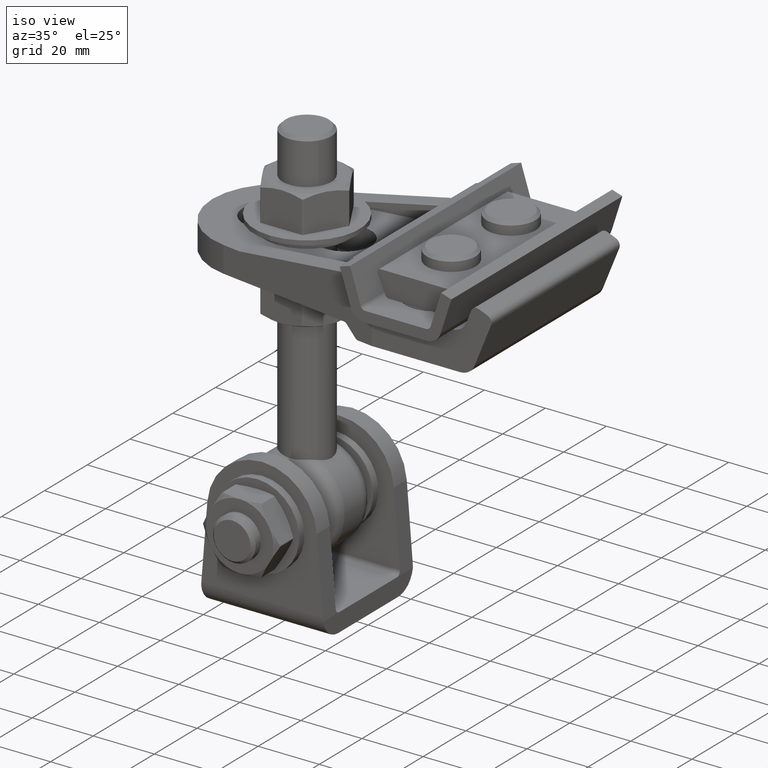
[diagram: clean part render]
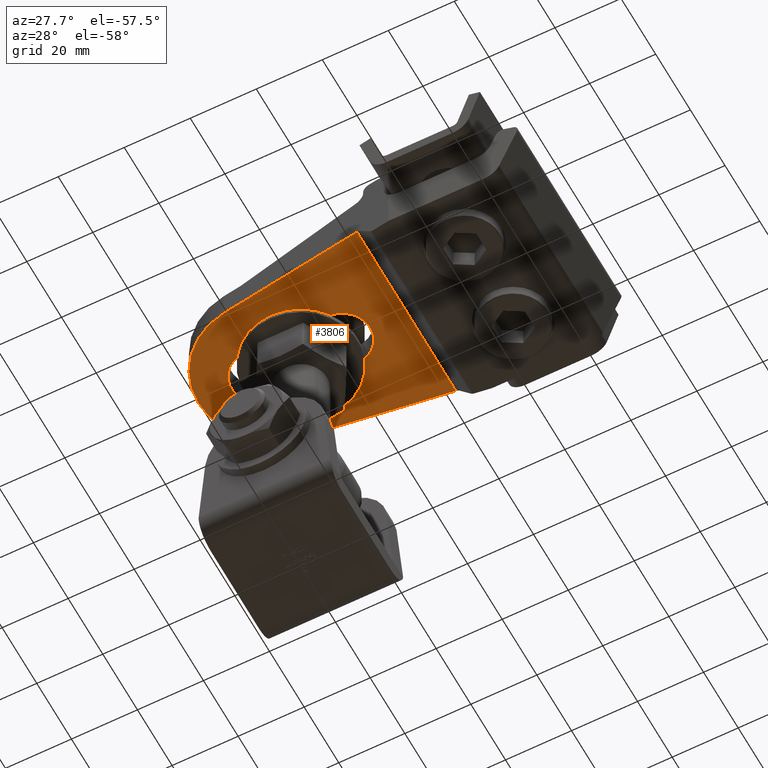
[diagram: tour spotlight — one face highlighted and labeled with its STEP entity id]
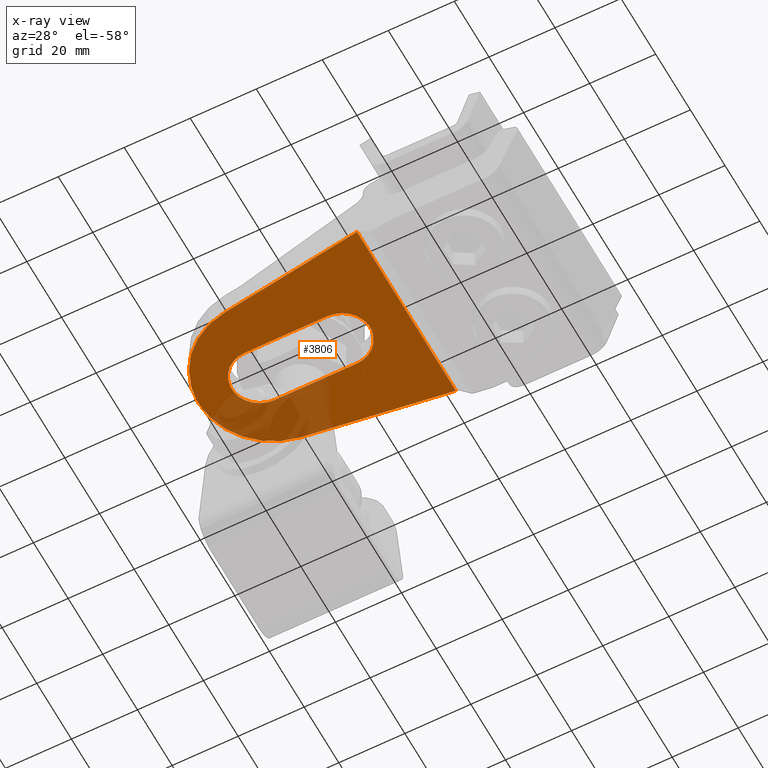
[diagram: x-ray of the same camera — body ghosted, this tour face saturated]
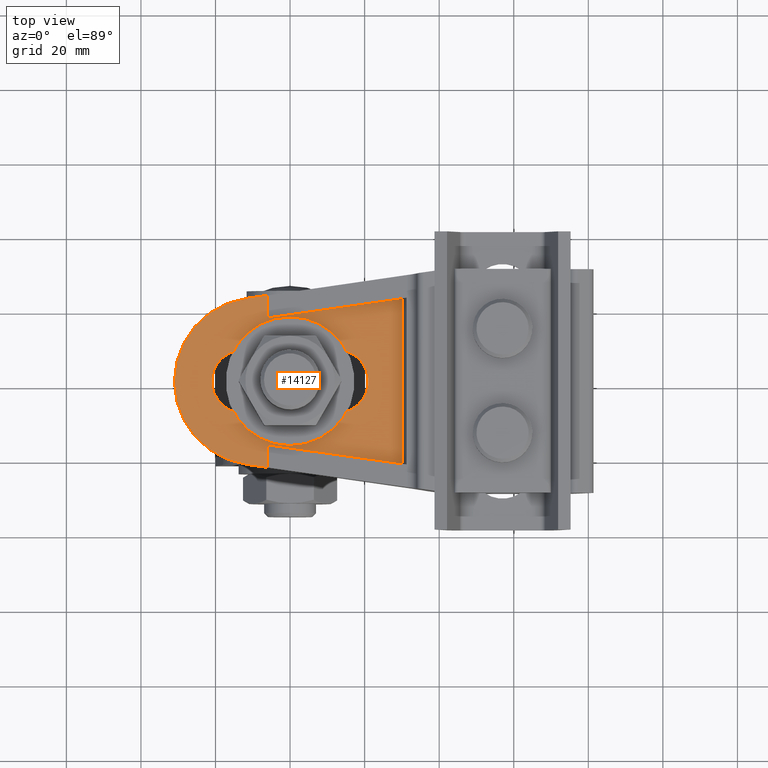
[diagram: tour spotlight — one face highlighted and labeled with its STEP entity id]
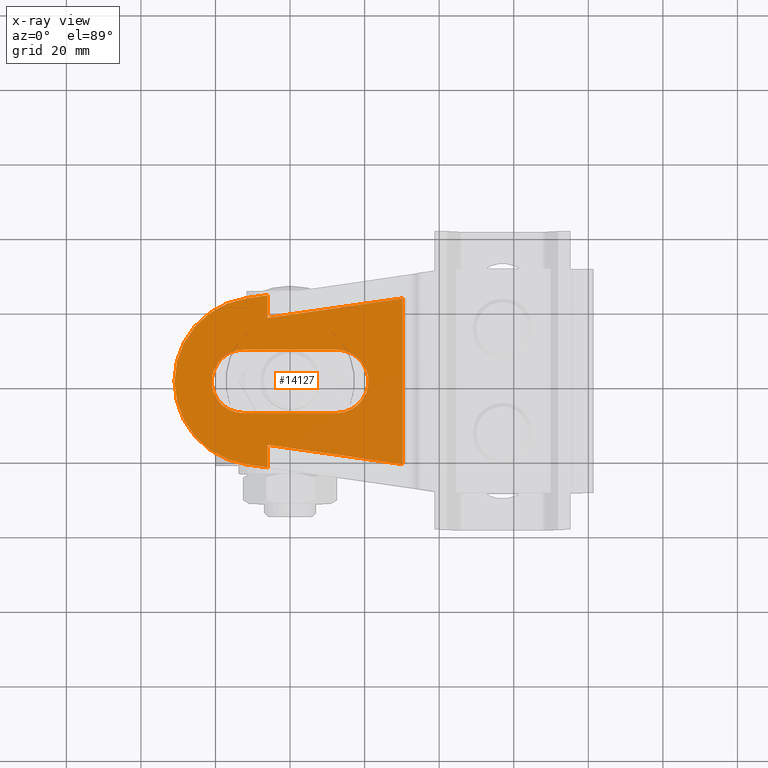
[diagram: x-ray of the same camera — body ghosted, this tour face saturated]
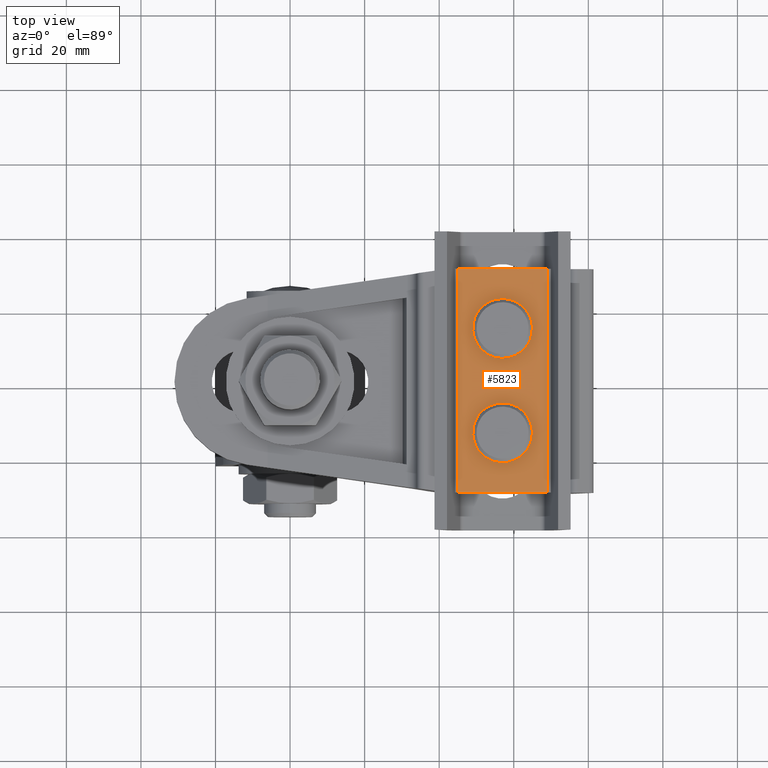
[diagram: tour spotlight — one face highlighted and labeled with its STEP entity id]
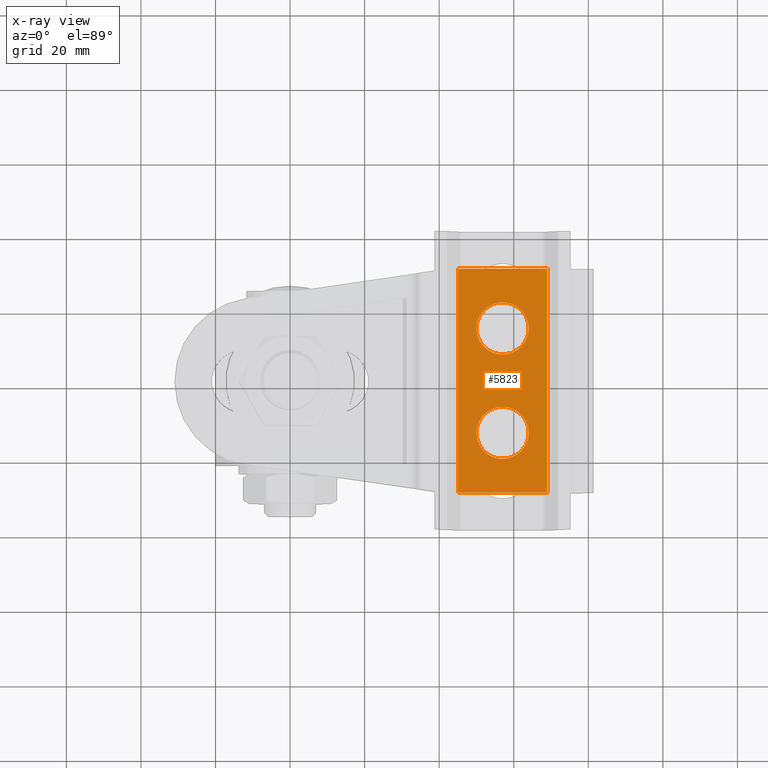
[diagram: x-ray of the same camera — body ghosted, this tour face saturated]
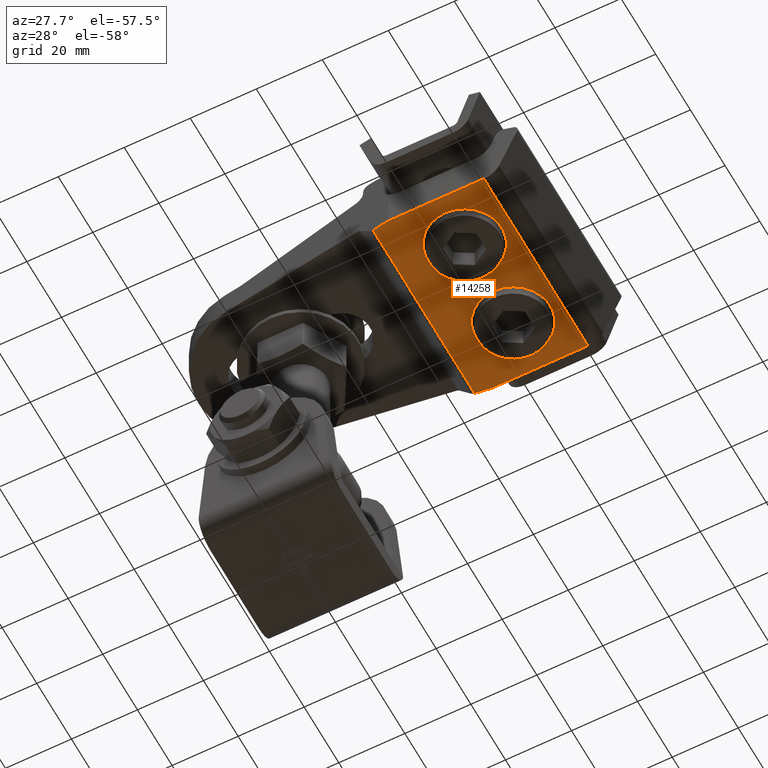
[diagram: tour spotlight — one face highlighted and labeled with its STEP entity id]
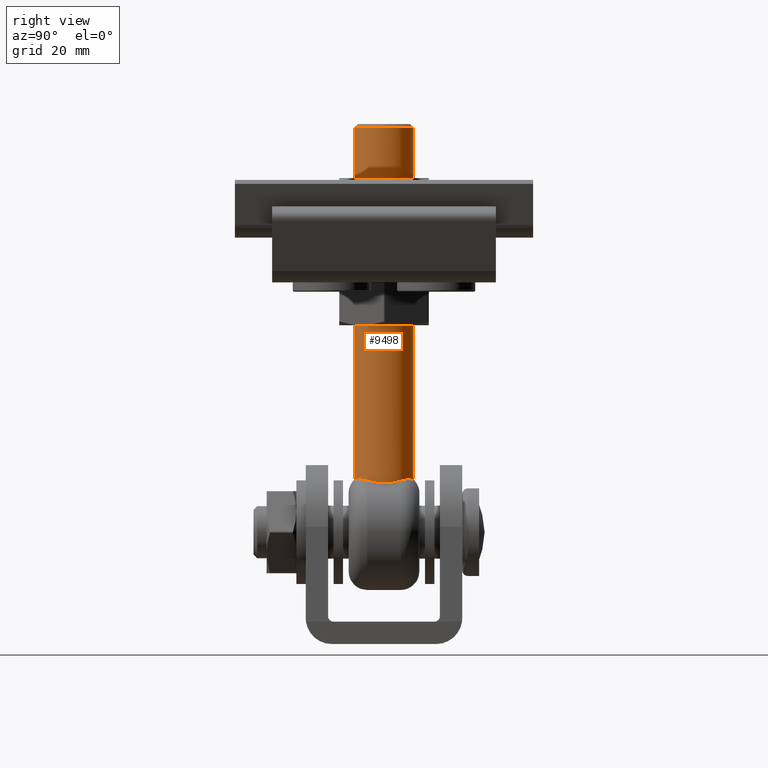
[diagram: tour spotlight — one face highlighted and labeled with its STEP entity id]
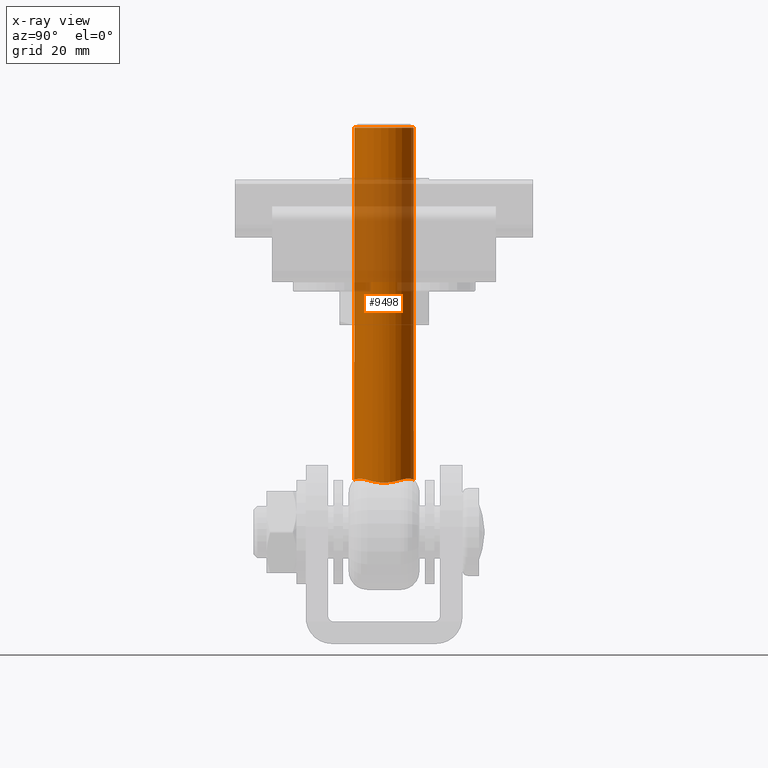
[diagram: x-ray of the same camera — body ghosted, this tour face saturated]
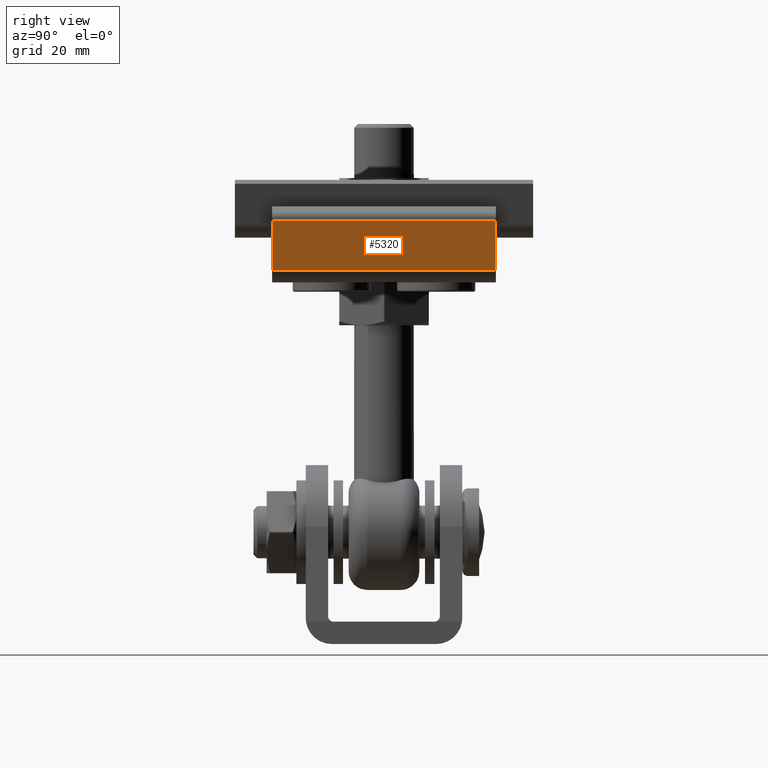
[diagram: tour spotlight — one face highlighted and labeled with its STEP entity id]
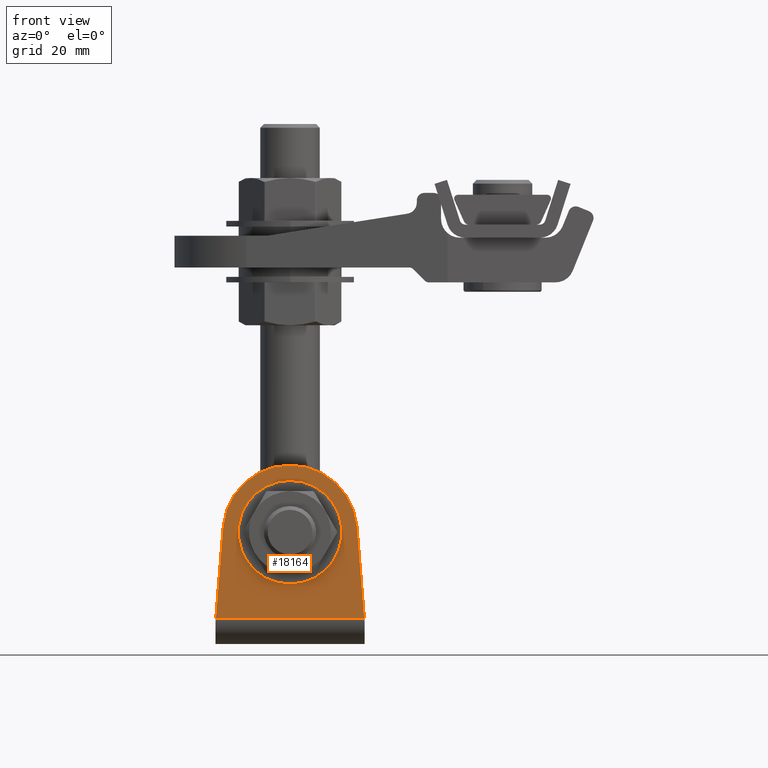
[diagram: tour spotlight — one face highlighted and labeled with its STEP entity id]
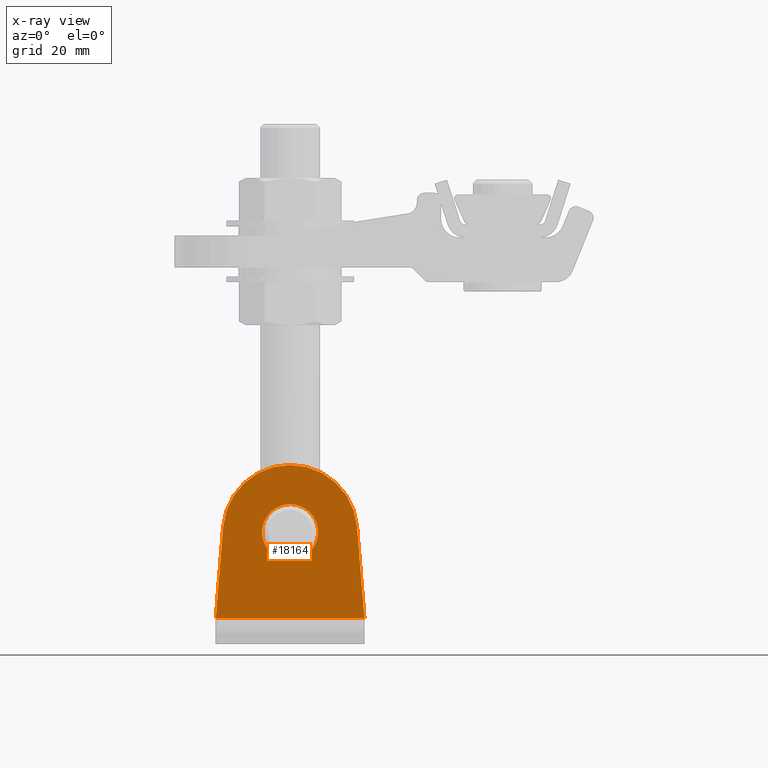
[diagram: x-ray of the same camera — body ghosted, this tour face saturated]
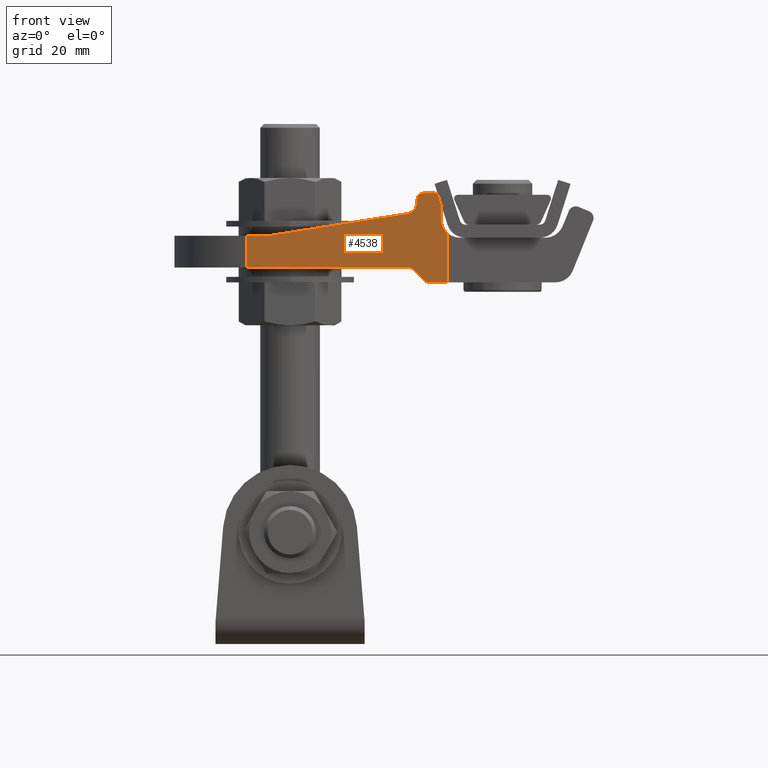
[diagram: tour spotlight — one face highlighted and labeled with its STEP entity id]
A machine part: a face-by-face anatomy tour. The part has 488 B-rep faces; the first image is the clean iso view, then the 8 largest visible faces are spotlighted one at a time (largest first), each with its STEP entity span.

Face 1 — auxiliary view, entity #3806. An x-ray twin of the same camera follows (body ghosted, this face saturated) — the face is partly hidden behind the body. In plain terms, the highlighted planar face has unit normal (0, 0, 1).
Definition (entity closure, byte-faithful):
#338 = ORIENTED_EDGE ( 'NONE', *, *, #9616, .T. ) ;
#402 = LINE ( 'NONE', #18643, #12766 ) ;
#461 = AXIS2_PLACEMENT_3D ( 'NONE', #1391, #14228, #14365 ) ;
#556 = CARTESIAN_POINT ( 'NONE',  ( 38.00000000000000000, -6.938893903907228378E-15, 6.500000000000007105 ) ) ;
#1169 = AXIS2_PLACEMENT_3D ( 'NONE', #5800, #2523, #10716 ) ;
#1391 = CARTESIAN_POINT ( 'NONE',  ( 56.50000000000000000, 30.00000000000000000, 6.500000000000002665 ) ) ;
#1575 = DIRECTION ( 'NONE',  ( 0.9898832253389983071, 0.1418844607152657256, -9.539853719284447018E-17 ) ) ;
#1597 = LINE ( 'NONE', #19187, #2364 ) ;
#2100 = LINE ( 'NONE', #11267, #16198 ) ;
#2325 = VECTOR ( 'NONE', #18670, 1000.000000000000000 ) ;
#2364 = VECTOR ( 'NONE', #6199, 1000.000000000000000 ) ;
#2448 = VERTEX_POINT ( 'NONE', #14483 ) ;
#2523 = DIRECTION ( 'NONE',  ( 9.637352644315596475E-17, -0.000000000000000000, 1.000000000000000000 ) ) ;
#3509 = CARTESIAN_POINT ( 'NONE',  ( 56.50000000000000000, -8.500000000000007105, 6.500000000000002665 ) ) ;
#3806 = ADVANCED_FACE ( 'NONE', ( #9475, #14750 ), #18781, .F. ) ;
#4777 = VERTEX_POINT ( 'NONE', #14042 ) ;
#5376 = AXIS2_PLACEMENT_3D ( 'NONE', #556, #14928, #10170 ) ;
#5800 = CARTESIAN_POINT ( 'NONE',  ( 34.00000000000000000, 0.000000000000000000, 6.500000000000007105 ) ) ;
#5838 = CARTESIAN_POINT ( 'NONE',  ( 56.50000000000000000, 8.500000000000007105, 6.500000000000002665 ) ) ;
#5876 = LINE ( 'NONE', #5838, #2325 ) ;
#6199 = DIRECTION ( 'NONE',  ( -0.9898832253389984182, 0.1418844607152655313, 9.539853719284448250E-17 ) ) ;
#6477 = VERTEX_POINT ( 'NONE', #14390 ) ;
#6686 = DIRECTION ( 'NONE',  ( -1.000000000000000000, 0.000000000000000000, 9.637352644315596475E-17 ) ) ;
#7733 = ORIENTED_EDGE ( 'NONE', *, *, #19986, .F. ) ;
#7751 = CARTESIAN_POINT ( 'NONE',  ( 37.99999999999999289, -8.500000000000014211, 6.500000000000007105 ) ) ;
#7794 = VERTEX_POINT ( 'NONE', #16688 ) ;
#7875 = CIRCLE ( 'NONE', #1169, 22.50000000000000000 ) ;
#8574 = ORIENTED_EDGE ( 'NONE', *, *, #10649, .T. ) ;
#8590 = CIRCLE ( 'NONE', #19296, 8.500000000000007105 ) ;
#8617 = VERTEX_POINT ( 'NONE', #14412 ) ;
#9475 = FACE_OUTER_BOUND ( 'NONE', #16668, .T. ) ;
#9616 = EDGE_CURVE ( 'NONE', #14835, #8617, #18653, .T. ) ;
#10170 = DIRECTION ( 'NONE',  ( -1.000000000000000000, 0.000000000000000000, 1.020425574104003260E-16 ) ) ;
#10450 = CIRCLE ( 'NONE', #5376, 8.500000000000007105 ) ;
#10649 = EDGE_CURVE ( 'NONE', #8617, #6477, #8590, .T. ) ;
#10660 = DIRECTION ( 'NONE',  ( -0.000000000000000000, -1.000000000000000000, -0.000000000000000000 ) ) ;
#10716 = DIRECTION ( 'NONE',  ( -1.000000000000000000, 0.000000000000000000, 1.156482317317871478E-16 ) ) ;
#11267 = CARTESIAN_POINT ( 'NONE',  ( 63.45291978971244617, -18.50833299339160831, 6.500000000000001776 ) ) ;
#11555 = DIRECTION ( 'NONE',  ( -1.000000000000000000, 0.000000000000000000, 1.020425574104003260E-16 ) ) ;
#11783 = VERTEX_POINT ( 'NONE', #16489 ) ;
#12766 = VECTOR ( 'NONE', #10660, 1000.000000000000000 ) ;
#13037 = ORIENTED_EDGE ( 'NONE', *, *, #14753, .T. ) ;
#13336 = EDGE_LOOP ( 'NONE', ( #17068, #338, #8574, #7733 ) ) ;
#13555 = ORIENTED_EDGE ( 'NONE', *, *, #18053, .T. ) ;
#14042 = CARTESIAN_POINT ( 'NONE',  ( -6.499999999999999112, 28.53500285278087389, 6.500000000000007994 ) ) ;
#14228 = DIRECTION ( 'NONE',  ( -9.637352644315596475E-17, 0.000000000000000000, -1.000000000000000000 ) ) ;
#14365 = DIRECTION ( 'NONE',  ( -1.000000000000000000, 0.000000000000000000, 9.637352644315596475E-17 ) ) ;
#14386 = VECTOR ( 'NONE', #6686, 1000.000000000000000 ) ;
#14390 = CARTESIAN_POINT ( 'NONE',  ( 12.99999999999999112, 8.500000000000007105, 6.500000000000004441 ) ) ;
#14412 = CARTESIAN_POINT ( 'NONE',  ( 12.99999999999999112, -8.500000000000007105, 6.500000000000007105 ) ) ;
#14483 = CARTESIAN_POINT ( 'NONE',  ( 37.99999999999999289, 8.500000000000007105, 6.500000000000007105 ) ) ;
#14750 = FACE_BOUND ( 'NONE', #13336, .T. ) ;
#14753 = EDGE_CURVE ( 'NONE', #4777, #11783, #402, .T. ) ;
#14835 = VERTEX_POINT ( 'NONE', #7751 ) ;
#14847 = DIRECTION ( 'NONE',  ( -9.637352644315596475E-17, 0.000000000000000000, -1.000000000000000000 ) ) ;
#14928 = DIRECTION ( 'NONE',  ( -9.637352644315596475E-17, 0.000000000000000000, -1.000000000000000000 ) ) ;
#15929 = VERTEX_POINT ( 'NONE', #19539 ) ;
#16198 = VECTOR ( 'NONE', #1575, 1000.000000000000114 ) ;
#16437 = ORIENTED_EDGE ( 'NONE', *, *, #19835, .T. ) ;
#16489 = CARTESIAN_POINT ( 'NONE',  ( -6.499999999999999112, -28.53500285278089876, 6.500000000000007994 ) ) ;
#16668 = EDGE_LOOP ( 'NONE', ( #13037, #20809, #16437, #13555 ) ) ;
#16688 = CARTESIAN_POINT ( 'NONE',  ( 37.19240036609347300, 22.27237257012746596, 6.500000000000010658 ) ) ;
#16712 = EDGE_CURVE ( 'NONE', #2448, #14835, #10450, .T. ) ;
#17068 = ORIENTED_EDGE ( 'NONE', *, *, #16712, .T. ) ;
#18053 = EDGE_CURVE ( 'NONE', #7794, #4777, #1597, .T. ) ;
#18643 = CARTESIAN_POINT ( 'NONE',  ( -6.499999999999999112, 30.00000000000000000, 6.500000000000007994 ) ) ;
#18653 = LINE ( 'NONE', #3509, #14386 ) ;
#18670 = DIRECTION ( 'NONE',  ( -1.000000000000000000, 0.000000000000000000, 9.637352644315596475E-17 ) ) ;
#18712 = EDGE_CURVE ( 'NONE', #11783, #15929, #2100, .T. ) ;
#18781 = PLANE ( 'NONE',  #461 ) ;
#19187 = CARTESIAN_POINT ( 'NONE',  ( 55.02597693381374455, 19.71620500493930805, 6.500000000000002665 ) ) ;
#19296 = AXIS2_PLACEMENT_3D ( 'NONE', #19627, #14847, #11555 ) ;
#19539 = CARTESIAN_POINT ( 'NONE',  ( 37.19240036609348010, -22.27237257012746952, 6.500000000000010658 ) ) ;
#19627 = CARTESIAN_POINT ( 'NONE',  ( 12.99999999999999112, -6.938893903907228378E-15, 6.500000000000007105 ) ) ;
#19835 = EDGE_CURVE ( 'NONE', #15929, #7794, #7875, .T. ) ;
#19986 = EDGE_CURVE ( 'NONE', #2448, #6477, #5876, .T. ) ;
#20809 = ORIENTED_EDGE ( 'NONE', *, *, #18712, .T. ) ;

Face 2 — top view, entity #14127. An x-ray twin of the same camera follows (body ghosted, this face saturated) — the face is partly hidden behind the body. In plain terms, the highlighted planar face has unit normal (0, -0, -1).
Definition (entity closure, byte-faithful):
#419 = CARTESIAN_POINT ( 'NONE',  ( 38.00000000000000000, -6.938893903907228378E-15, -1.999999999999996669 ) ) ;
#645 = VECTOR ( 'NONE', #13883, 1000.000000000000000 ) ;
#815 = EDGE_CURVE ( 'NONE', #19872, #3715, #10074, .T. ) ;
#831 = CIRCLE ( 'NONE', #17224, 8.500000000000007105 ) ;
#1220 = EDGE_CURVE ( 'NONE', #19872, #1550, #17567, .T. ) ;
#1403 = CARTESIAN_POINT ( 'NONE',  ( 12.99999999999999112, 8.500000000000007105, -1.999999999999996669 ) ) ;
#1408 = AXIS2_PLACEMENT_3D ( 'NONE', #18634, #5867, #2594 ) ;
#1409 = PLANE ( 'NONE',  #2351 ) ;
#1550 = VERTEX_POINT ( 'NONE', #3863 ) ;
#1622 = DIRECTION ( 'NONE',  ( 0.9898832253389984182, -0.1418844607152655035, 0.000000000000000000 ) ) ;
#1891 = DIRECTION ( 'NONE',  ( 1.000000000000000000, 0.000000000000000000, 0.000000000000000000 ) ) ;
#2351 = AXIS2_PLACEMENT_3D ( 'NONE', #9333, #17400, #20664 ) ;
#2376 = VECTOR ( 'NONE', #14540, 1000.000000000000000 ) ;
#2536 = DIRECTION ( 'NONE',  ( -0.000000000000000000, -1.000000000000000000, -0.000000000000000000 ) ) ;
#2578 = CARTESIAN_POINT ( 'NONE',  ( 34.00000000000000000, 0.000000000000000000, -1.999999999999996669 ) ) ;
#2594 = DIRECTION ( 'NONE',  ( -1.000000000000000000, 0.000000000000000000, 0.000000000000000000 ) ) ;
#2602 = CARTESIAN_POINT ( 'NONE',  ( 31.50000000000000000, 30.00000000000000000, -1.999999999999996669 ) ) ;
#2892 = CARTESIAN_POINT ( 'NONE',  ( 37.19240036609348010, -22.27237257012746952, -1.999999999999996669 ) ) ;
#2967 = CARTESIAN_POINT ( 'NONE',  ( 31.50000000000000711, -23.08829018085571150, -1.999999999999996669 ) ) ;
#3225 = VECTOR ( 'NONE', #3740, 1000.000000000000000 ) ;
#3689 = CARTESIAN_POINT ( 'NONE',  ( 31.50000000000000000, 23.08829018085569729, -1.999999999999996669 ) ) ;
#3715 = VERTEX_POINT ( 'NONE', #4052 ) ;
#3740 = DIRECTION ( 'NONE',  ( 0.9898832253389984182, -0.1418844607152655313, 0.000000000000000000 ) ) ;
#3751 = DIRECTION ( 'NONE',  ( 0.000000000000000000, 0.000000000000000000, 1.000000000000000000 ) ) ;
#3844 = VERTEX_POINT ( 'NONE', #2892 ) ;
#3863 = CARTESIAN_POINT ( 'NONE',  ( 31.50000000000000000, -17.02696916195955623, -1.999999999999996669 ) ) ;
#4052 = CARTESIAN_POINT ( 'NONE',  ( -4.722881292262453456, 22.21895933428078251, -1.999999999999994893 ) ) ;
#4292 = EDGE_LOOP ( 'NONE', ( #6317, #10360, #8944, #10957, #17011, #19492, #16900, #11607 ) ) ;
#4353 = EDGE_CURVE ( 'NONE', #3844, #8075, #15015, .T. ) ;
#4380 = AXIS2_PLACEMENT_3D ( 'NONE', #2578, #12037, #16791 ) ;
#4646 = CARTESIAN_POINT ( 'NONE',  ( 3.025554408345583202, -21.10834083643608849, -1.999999999999996669 ) ) ;
#4692 = EDGE_LOOP ( 'NONE', ( #13658, #16168, #19337, #16705 ) ) ;
#4864 = CARTESIAN_POINT ( 'NONE',  ( 30.52925693862528789, 23.22743119489709329, -1.999999999999996669 ) ) ;
#4915 = LINE ( 'NONE', #6536, #17471 ) ;
#5743 = CARTESIAN_POINT ( 'NONE',  ( 31.50000000000000000, -8.500000000000007105, -1.999999999999996669 ) ) ;
#5791 = VECTOR ( 'NONE', #11357, 1000.000000000000000 ) ;
#5867 = DIRECTION ( 'NONE',  ( -0.000000000000000000, -0.000000000000000000, 1.000000000000000000 ) ) ;
#5897 = EDGE_CURVE ( 'NONE', #10041, #16462, #15727, .T. ) ;
#5983 = EDGE_CURVE ( 'NONE', #1550, #8075, #10713, .T. ) ;
#6317 = ORIENTED_EDGE ( 'NONE', *, *, #1220, .F. ) ;
#6494 = FACE_OUTER_BOUND ( 'NONE', #4292, .T. ) ;
#6536 = CARTESIAN_POINT ( 'NONE',  ( 3.025554408345579649, 21.10834083643606718, -1.999999999999996669 ) ) ;
#7110 = CARTESIAN_POINT ( 'NONE',  ( 31.50000000000000000, 30.00000000000000000, -1.999999999999996669 ) ) ;
#7158 = EDGE_CURVE ( 'NONE', #18758, #16462, #831, .T. ) ;
#7372 = CARTESIAN_POINT ( 'NONE',  ( -4.722881292262453456, -22.21895933428080383, -1.999999999999996669 ) ) ;
#7688 = CARTESIAN_POINT ( 'NONE',  ( 37.19240036609347300, 22.27237257012746596, -1.999999999999996669 ) ) ;
#8075 = VERTEX_POINT ( 'NONE', #2967 ) ;
#8126 = VERTEX_POINT ( 'NONE', #7688 ) ;
#8944 = ORIENTED_EDGE ( 'NONE', *, *, #17780, .T. ) ;
#9220 = DIRECTION ( 'NONE',  ( -0.9898832253389983071, -0.1418844607152657256, 0.000000000000000000 ) ) ;
#9333 = CARTESIAN_POINT ( 'NONE',  ( 31.50000000000000000, 30.00000000000000000, -1.999999999999996669 ) ) ;
#9948 = CARTESIAN_POINT ( 'NONE',  ( 12.99999999999999112, -8.500000000000014211, -1.999999999999996669 ) ) ;
#10041 = VERTEX_POINT ( 'NONE', #1403 ) ;
#10074 = LINE ( 'NONE', #11425, #5791 ) ;
#10269 = VERTEX_POINT ( 'NONE', #3689 ) ;
#10360 = ORIENTED_EDGE ( 'NONE', *, *, #815, .T. ) ;
#10604 = VERTEX_POINT ( 'NONE', #9948 ) ;
#10713 = LINE ( 'NONE', #7110, #19765 ) ;
#10957 = ORIENTED_EDGE ( 'NONE', *, *, #14617, .F. ) ;
#11254 = LINE ( 'NONE', #5743, #645 ) ;
#11332 = CARTESIAN_POINT ( 'NONE',  ( 31.50000000000000000, 8.500000000000007105, -1.999999999999996669 ) ) ;
#11357 = DIRECTION ( 'NONE',  ( -0.000000000000000000, 1.000000000000000000, 0.000000000000000000 ) ) ;
#11425 = CARTESIAN_POINT ( 'NONE',  ( -4.722881292262455233, 30.00000000000000000, -1.999999999999996669 ) ) ;
#11607 = ORIENTED_EDGE ( 'NONE', *, *, #5983, .F. ) ;
#12037 = DIRECTION ( 'NONE',  ( -0.000000000000000000, -0.000000000000000000, -1.000000000000000000 ) ) ;
#12730 = CIRCLE ( 'NONE', #1408, 8.500000000000007105 ) ;
#12763 = VECTOR ( 'NONE', #9220, 1000.000000000000114 ) ;
#12851 = EDGE_CURVE ( 'NONE', #10269, #8126, #16041, .T. ) ;
#13014 = VECTOR ( 'NONE', #2536, 1000.000000000000000 ) ;
#13039 = EDGE_CURVE ( 'NONE', #8126, #3844, #14534, .T. ) ;
#13568 = DIRECTION ( 'NONE',  ( -0.000000000000000000, -1.000000000000000000, -0.000000000000000000 ) ) ;
#13658 = ORIENTED_EDGE ( 'NONE', *, *, #5897, .F. ) ;
#13883 = DIRECTION ( 'NONE',  ( 1.000000000000000000, 0.000000000000000000, -0.000000000000000000 ) ) ;
#14127 = ADVANCED_FACE ( 'NONE', ( #6494, #14513 ), #1409, .F. ) ;
#14513 = FACE_BOUND ( 'NONE', #4692, .T. ) ;
#14534 = CIRCLE ( 'NONE', #4380, 22.50000000000000000 ) ;
#14540 = DIRECTION ( 'NONE',  ( 1.000000000000000000, 0.000000000000000000, -0.000000000000000000 ) ) ;
#14594 = EDGE_CURVE ( 'NONE', #10604, #18758, #11254, .T. ) ;
#14617 = EDGE_CURVE ( 'NONE', #10269, #20510, #17253, .T. ) ;
#15015 = LINE ( 'NONE', #18822, #12763 ) ;
#15727 = LINE ( 'NONE', #11332, #2376 ) ;
#15887 = DIRECTION ( 'NONE',  ( 0.9898832253389984182, 0.1418844607152655313, 0.000000000000000000 ) ) ;
#15915 = CARTESIAN_POINT ( 'NONE',  ( 37.99999999999999289, 8.500000000000007105, -1.999999999999996669 ) ) ;
#16041 = LINE ( 'NONE', #4864, #3225 ) ;
#16168 = ORIENTED_EDGE ( 'NONE', *, *, #16979, .T. ) ;
#16462 = VERTEX_POINT ( 'NONE', #15915 ) ;
#16545 = VECTOR ( 'NONE', #15887, 1000.000000000000000 ) ;
#16705 = ORIENTED_EDGE ( 'NONE', *, *, #7158, .T. ) ;
#16791 = DIRECTION ( 'NONE',  ( 1.000000000000000000, 0.000000000000000000, 0.000000000000000000 ) ) ;
#16900 = ORIENTED_EDGE ( 'NONE', *, *, #4353, .T. ) ;
#16979 = EDGE_CURVE ( 'NONE', #10041, #10604, #12730, .T. ) ;
#17011 = ORIENTED_EDGE ( 'NONE', *, *, #12851, .T. ) ;
#17224 = AXIS2_PLACEMENT_3D ( 'NONE', #419, #3751, #1891 ) ;
#17253 = LINE ( 'NONE', #2602, #13014 ) ;
#17400 = DIRECTION ( 'NONE',  ( 0.000000000000000000, 0.000000000000000000, 1.000000000000000000 ) ) ;
#17471 = VECTOR ( 'NONE', #1622, 1000.000000000000000 ) ;
#17567 = LINE ( 'NONE', #4646, #16545 ) ;
#17780 = EDGE_CURVE ( 'NONE', #3715, #20510, #4915, .T. ) ;
#18634 = CARTESIAN_POINT ( 'NONE',  ( 12.99999999999999112, -6.938893903907228378E-15, -1.999999999999996669 ) ) ;
#18758 = VERTEX_POINT ( 'NONE', #19692 ) ;
#18822 = CARTESIAN_POINT ( 'NONE',  ( 38.95619979452398240, -22.01955918334940066, -1.999999999999996669 ) ) ;
#19337 = ORIENTED_EDGE ( 'NONE', *, *, #14594, .T. ) ;
#19492 = ORIENTED_EDGE ( 'NONE', *, *, #13039, .T. ) ;
#19692 = CARTESIAN_POINT ( 'NONE',  ( 37.99999999999999289, -8.500000000000007105, -1.999999999999996669 ) ) ;
#19765 = VECTOR ( 'NONE', #13568, 1000.000000000000000 ) ;
#19872 = VERTEX_POINT ( 'NONE', #7372 ) ;
#20356 = CARTESIAN_POINT ( 'NONE',  ( 31.50000000000000000, 17.02696916195953847, -1.999999999999996669 ) ) ;
#20510 = VERTEX_POINT ( 'NONE', #20356 ) ;
#20664 = DIRECTION ( 'NONE',  ( 1.000000000000000000, 0.000000000000000000, -0.000000000000000000 ) ) ;

Face 3 — top view, entity #5823. An x-ray twin of the same camera follows (body ghosted, this face saturated) — the face is partly hidden behind the body. In plain terms, the highlighted planar face has unit normal (-0, -0, -1).
Definition (entity closure, byte-faithful):
#148 = DIRECTION ( 'NONE',  ( -0.000000000000000000, -1.000000000000000000, -0.000000000000000000 ) ) ;
#341 = DIRECTION ( 'NONE',  ( 1.000000000000000000, 0.000000000000000000, 0.000000000000000000 ) ) ;
#642 = LINE ( 'NONE', #3205, #10493 ) ;
#1285 = VECTOR ( 'NONE', #10369, 1000.000000000000000 ) ;
#1322 = VERTEX_POINT ( 'NONE', #18066 ) ;
#1472 = EDGE_CURVE ( 'NONE', #5618, #5618, #16312, .T. ) ;
#1941 = CARTESIAN_POINT ( 'NONE',  ( -11.99999999999999822, 30.00000000000000000, -4.000000000000002665 ) ) ;
#2178 = CARTESIAN_POINT ( 'NONE',  ( -11.99999999999999822, 30.00000000000000000, -4.000000000000001776 ) ) ;
#2374 = CARTESIAN_POINT ( 'NONE',  ( -11.99999999999999822, -30.00000000000000000, -4.000000000000002665 ) ) ;
#3007 = ORIENTED_EDGE ( 'NONE', *, *, #15081, .T. ) ;
#3205 = CARTESIAN_POINT ( 'NONE',  ( -11.99999999999999822, 30.00000000000000000, -4.000000000000001776 ) ) ;
#3438 = LINE ( 'NONE', #20734, #11735 ) ;
#3541 = DIRECTION ( 'NONE',  ( -0.000000000000000000, -0.000000000000000000, 1.000000000000000000 ) ) ;
#3701 = CIRCLE ( 'NONE', #4141, 6.999999999999986677 ) ;
#4141 = AXIS2_PLACEMENT_3D ( 'NONE', #14776, #3541, #341 ) ;
#4776 = EDGE_CURVE ( 'NONE', #17405, #14389, #3438, .T. ) ;
#4853 = EDGE_CURVE ( 'NONE', #14389, #11020, #642, .T. ) ;
#5420 = DIRECTION ( 'NONE',  ( 1.000000000000000000, 0.000000000000000000, 0.000000000000000000 ) ) ;
#5618 = VERTEX_POINT ( 'NONE', #10774 ) ;
#5823 = ADVANCED_FACE ( 'NONE', ( #17748, #11978, #10970 ), #13156, .F. ) ;
#5987 = CARTESIAN_POINT ( 'NONE',  ( 6.999999999999989342, -14.00000000000000000, -4.000000000000005329 ) ) ;
#7164 = ORIENTED_EDGE ( 'NONE', *, *, #4853, .F. ) ;
#7313 = EDGE_CURVE ( 'NONE', #17405, #1322, #11936, .T. ) ;
#8099 = VERTEX_POINT ( 'NONE', #5987 ) ;
#8370 = DIRECTION ( 'NONE',  ( 1.000000000000000000, 0.000000000000000000, -0.000000000000000000 ) ) ;
#8577 = ORIENTED_EDGE ( 'NONE', *, *, #20712, .T. ) ;
#9130 = EDGE_LOOP ( 'NONE', ( #3007 ) ) ;
#10369 = DIRECTION ( 'NONE',  ( -1.000000000000000000, -0.000000000000000000, -0.000000000000000000 ) ) ;
#10493 = VECTOR ( 'NONE', #148, 1000.000000000000000 ) ;
#10774 = CARTESIAN_POINT ( 'NONE',  ( 6.999999999999989342, 14.00000000000000000, -4.000000000000005329 ) ) ;
#10970 = FACE_OUTER_BOUND ( 'NONE', #13765, .T. ) ;
#11020 = VERTEX_POINT ( 'NONE', #20766 ) ;
#11137 = EDGE_LOOP ( 'NONE', ( #17286 ) ) ;
#11735 = VECTOR ( 'NONE', #15717, 1000.000000000000000 ) ;
#11819 = DIRECTION ( 'NONE',  ( -0.000000000000000000, -0.000000000000000000, 1.000000000000000000 ) ) ;
#11936 = LINE ( 'NONE', #14591, #20494 ) ;
#11978 = FACE_BOUND ( 'NONE', #9130, .T. ) ;
#13084 = DIRECTION ( 'NONE',  ( 0.000000000000000000, 0.000000000000000000, 1.000000000000000000 ) ) ;
#13123 = AXIS2_PLACEMENT_3D ( 'NONE', #15043, #11819, #5420 ) ;
#13156 = PLANE ( 'NONE',  #16914 ) ;
#13345 = ORIENTED_EDGE ( 'NONE', *, *, #4776, .F. ) ;
#13765 = EDGE_LOOP ( 'NONE', ( #8577, #7164, #13345, #15497 ) ) ;
#14150 = LINE ( 'NONE', #2374, #1285 ) ;
#14389 = VERTEX_POINT ( 'NONE', #2178 ) ;
#14591 = CARTESIAN_POINT ( 'NONE',  ( 11.99999999999999822, 30.00000000000000000, -4.000000000000002665 ) ) ;
#14776 = CARTESIAN_POINT ( 'NONE',  ( 3.868295729918083248E-15, -14.00000000000000000, -4.000000000000005329 ) ) ;
#15043 = CARTESIAN_POINT ( 'NONE',  ( 3.868295729918083248E-15, 14.00000000000000000, -4.000000000000005329 ) ) ;
#15081 = EDGE_CURVE ( 'NONE', #8099, #8099, #3701, .T. ) ;
#15497 = ORIENTED_EDGE ( 'NONE', *, *, #7313, .T. ) ;
#15717 = DIRECTION ( 'NONE',  ( -1.000000000000000000, -0.000000000000000000, -0.000000000000000000 ) ) ;
#16060 = DIRECTION ( 'NONE',  ( -0.000000000000000000, -1.000000000000000000, -0.000000000000000000 ) ) ;
#16312 = CIRCLE ( 'NONE', #13123, 6.999999999999986677 ) ;
#16914 = AXIS2_PLACEMENT_3D ( 'NONE', #1941, #13084, #8370 ) ;
#17286 = ORIENTED_EDGE ( 'NONE', *, *, #1472, .T. ) ;
#17405 = VERTEX_POINT ( 'NONE', #19901 ) ;
#17748 = FACE_BOUND ( 'NONE', #11137, .T. ) ;
#18066 = CARTESIAN_POINT ( 'NONE',  ( 11.99999999999999822, -30.00000000000000000, -4.000000000000002665 ) ) ;
#19901 = CARTESIAN_POINT ( 'NONE',  ( 11.99999999999999822, 30.00000000000000000, -4.000000000000002665 ) ) ;
#20494 = VECTOR ( 'NONE', #16060, 1000.000000000000000 ) ;
#20712 = EDGE_CURVE ( 'NONE', #1322, #11020, #14150, .T. ) ;
#20734 = CARTESIAN_POINT ( 'NONE',  ( -11.99999999999999822, 30.00000000000000000, -4.000000000000002665 ) ) ;
#20766 = CARTESIAN_POINT ( 'NONE',  ( -11.99999999999999822, -30.00000000000000000, -4.000000000000001776 ) ) ;

Face 4 — auxiliary view, entity #14258. In plain terms, the highlighted planar face has unit normal (0, 0, 1).
Definition (entity closure, byte-faithful):
#171 = CIRCLE ( 'NONE', #13949, 11.19999999999999929 ) ;
#221 = DIRECTION ( 'NONE',  ( -1.000000000000000000, 0.000000000000000000, 5.108684021380536914E-17 ) ) ;
#652 = VERTEX_POINT ( 'NONE', #10738 ) ;
#835 = VERTEX_POINT ( 'NONE', #1463 ) ;
#1238 = DIRECTION ( 'NONE',  ( -0.000000000000000000, 1.445602896647338917E-16, -1.000000000000000000 ) ) ;
#1443 = DIRECTION ( 'NONE',  ( 0.9898832253389984182, -0.1418844607152655313, 0.000000000000000000 ) ) ;
#1463 = CARTESIAN_POINT ( 'NONE',  ( -45.69900731141533612, -30.00000000000000000, 10.50000000000000178 ) ) ;
#1748 = EDGE_CURVE ( 'NONE', #20707, #20707, #171, .T. ) ;
#2337 = VECTOR ( 'NONE', #4212, 1000.000000000000000 ) ;
#2574 = VERTEX_POINT ( 'NONE', #13219 ) ;
#2607 = CARTESIAN_POINT ( 'NONE',  ( -11.74264068711926257, 30.00000000000000000, 10.50000000000000000 ) ) ;
#2938 = FACE_BOUND ( 'NONE', #16679, .T. ) ;
#3019 = VECTOR ( 'NONE', #17488, 1000.000000000000000 ) ;
#3313 = AXIS2_PLACEMENT_3D ( 'NONE', #5926, #1238, #14136 ) ;
#3792 = EDGE_CURVE ( 'NONE', #2574, #16300, #16993, .T. ) ;
#4212 = DIRECTION ( 'NONE',  ( -0.000000000000000000, -1.000000000000000000, -0.000000000000000000 ) ) ;
#4260 = AXIS2_PLACEMENT_3D ( 'NONE', #11299, #17965, #221 ) ;
#4366 = CARTESIAN_POINT ( 'NONE',  ( -31.49999999999998579, 25.19999999999998508, 10.50000000000000888 ) ) ;
#4496 = CARTESIAN_POINT ( 'NONE',  ( -45.69900731141533612, 30.00000000000000000, 10.50000000000000178 ) ) ;
#4582 = DIRECTION ( 'NONE',  ( -0.9898832253389983071, -0.1418844607152657256, 0.000000000000000000 ) ) ;
#5594 = EDGE_CURVE ( 'NONE', #10646, #10646, #12484, .T. ) ;
#5731 = FACE_OUTER_BOUND ( 'NONE', #12404, .T. ) ;
#5926 = CARTESIAN_POINT ( 'NONE',  ( -31.49999999999998579, 13.99999999999998579, 10.50000000000000711 ) ) ;
#6237 = ORIENTED_EDGE ( 'NONE', *, *, #7296, .F. ) ;
#6656 = LINE ( 'NONE', #18677, #2337 ) ;
#6741 = FACE_BOUND ( 'NONE', #11642, .T. ) ;
#6879 = CARTESIAN_POINT ( 'NONE',  ( -31.49999999999998579, -13.99999999999998579, 10.50000000000000711 ) ) ;
#7296 = EDGE_CURVE ( 'NONE', #9255, #13515, #6656, .T. ) ;
#7373 = VECTOR ( 'NONE', #4582, 1000.000000000000114 ) ;
#7422 = ORIENTED_EDGE ( 'NONE', *, *, #8539, .F. ) ;
#8289 = ORIENTED_EDGE ( 'NONE', *, *, #8656, .F. ) ;
#8484 = DIRECTION ( 'NONE',  ( -0.000000000000000000, 1.445602896647338917E-16, 1.000000000000000000 ) ) ;
#8539 = EDGE_CURVE ( 'NONE', #16300, #9255, #14402, .T. ) ;
#8593 = ORIENTED_EDGE ( 'NONE', *, *, #11585, .T. ) ;
#8656 = EDGE_CURVE ( 'NONE', #13515, #652, #11659, .T. ) ;
#9255 = VERTEX_POINT ( 'NONE', #20228 ) ;
#9577 = EDGE_CURVE ( 'NONE', #2574, #835, #12141, .T. ) ;
#10591 = ORIENTED_EDGE ( 'NONE', *, *, #3792, .F. ) ;
#10646 = VERTEX_POINT ( 'NONE', #4366 ) ;
#10738 = CARTESIAN_POINT ( 'NONE',  ( -16.72082399926730645, -30.00000000000000355, 10.50000000000000178 ) ) ;
#11088 = ORIENTED_EDGE ( 'NONE', *, *, #5594, .T. ) ;
#11299 = CARTESIAN_POINT ( 'NONE',  ( -11.74264068711926257, 30.00000000000000000, 10.50000000000000000 ) ) ;
#11585 = EDGE_CURVE ( 'NONE', #835, #652, #15856, .T. ) ;
#11642 = EDGE_LOOP ( 'NONE', ( #11749 ) ) ;
#11659 = LINE ( 'NONE', #14216, #7373 ) ;
#11749 = ORIENTED_EDGE ( 'NONE', *, *, #1748, .F. ) ;
#12141 = LINE ( 'NONE', #4496, #15893 ) ;
#12404 = EDGE_LOOP ( 'NONE', ( #8593, #8289, #6237, #7422, #10591, #14145 ) ) ;
#12484 = CIRCLE ( 'NONE', #3313, 11.19999999999999929 ) ;
#13219 = CARTESIAN_POINT ( 'NONE',  ( -45.69900731141533612, 30.00000000000000000, 10.50000000000000178 ) ) ;
#13515 = VERTEX_POINT ( 'NONE', #14893 ) ;
#13949 = AXIS2_PLACEMENT_3D ( 'NONE', #6879, #8484, #19731 ) ;
#14023 = DIRECTION ( 'NONE',  ( 1.000000000000000000, -0.000000000000000000, -5.108684021380536914E-17 ) ) ;
#14136 = DIRECTION ( 'NONE',  ( 0.000000000000000000, 1.000000000000000000, 1.548860246407863583E-16 ) ) ;
#14145 = ORIENTED_EDGE ( 'NONE', *, *, #9577, .T. ) ;
#14216 = CARTESIAN_POINT ( 'NONE',  ( 3.876861172637180442, -27.04764018847006213, 10.50000000000000178 ) ) ;
#14258 = ADVANCED_FACE ( 'NONE', ( #6741, #2938, #5731 ), #16343, .F. ) ;
#14402 = LINE ( 'NONE', #17508, #14643 ) ;
#14643 = VECTOR ( 'NONE', #1443, 1000.000000000000000 ) ;
#14893 = CARTESIAN_POINT ( 'NONE',  ( -11.74264068711926257, -29.28645436501465227, 10.50000000000000178 ) ) ;
#15856 = LINE ( 'NONE', #15871, #3019 ) ;
#15871 = CARTESIAN_POINT ( 'NONE',  ( -11.74264068711926257, -30.00000000000000000, 10.50000000000000000 ) ) ;
#15893 = VECTOR ( 'NONE', #15945, 1000.000000000000000 ) ;
#15945 = DIRECTION ( 'NONE',  ( -0.000000000000000000, -1.000000000000000000, -0.000000000000000000 ) ) ;
#16300 = VERTEX_POINT ( 'NONE', #19292 ) ;
#16343 = PLANE ( 'NONE',  #4260 ) ;
#16679 = EDGE_LOOP ( 'NONE', ( #11088 ) ) ;
#16993 = LINE ( 'NONE', #2607, #19783 ) ;
#17488 = DIRECTION ( 'NONE',  ( 1.000000000000000000, -0.000000000000000000, -5.108684021380536914E-17 ) ) ;
#17508 = CARTESIAN_POINT ( 'NONE',  ( 3.876861172637173336, 27.04764018847005502, 10.50000000000000178 ) ) ;
#17965 = DIRECTION ( 'NONE',  ( -5.108684021380536914E-17, 0.000000000000000000, -1.000000000000000000 ) ) ;
#18677 = CARTESIAN_POINT ( 'NONE',  ( -11.74264068711926257, 30.00000000000000000, 10.50000000000000000 ) ) ;
#19292 = CARTESIAN_POINT ( 'NONE',  ( -16.72082399926730290, 29.99999999999998579, 10.50000000000000178 ) ) ;
#19731 = DIRECTION ( 'NONE',  ( 0.000000000000000000, -1.000000000000000000, 1.548860246407863583E-16 ) ) ;
#19783 = VECTOR ( 'NONE', #14023, 1000.000000000000000 ) ;
#20202 = CARTESIAN_POINT ( 'NONE',  ( -31.49999999999998579, -25.19999999999998508, 10.50000000000000888 ) ) ;
#20228 = CARTESIAN_POINT ( 'NONE',  ( -11.74264068711926079, 29.28645436501464161, 10.50000000000000178 ) ) ;
#20707 = VERTEX_POINT ( 'NONE', #20202 ) ;

Face 5 — right view, entity #9498. An x-ray twin of the same camera follows (body ghosted, this face saturated) — the face is partly hidden behind the body. In plain terms, the highlighted cylindrical surface (bore or boss wall) has radius 8 mm, axis along (0, 0, 1).
Definition (entity closure, byte-faithful):
#232 = CARTESIAN_POINT ( 'NONE',  ( -6.614378277661477235, -4.499999999999999112, 14.01784576887618528 ) ) ;
#651 = CARTESIAN_POINT ( 'NONE',  ( -7.032247271186963467, -3.834165848819489408, 13.81428742446450464 ) ) ;
#928 = CARTESIAN_POINT ( 'NONE',  ( 6.435272734653651128, 4.763260402906797530, 14.10235745723504763 ) ) ;
#973 = AXIS2_PLACEMENT_3D ( 'NONE', #12523, #16002, #19029 ) ;
#1001 = CARTESIAN_POINT ( 'NONE',  ( -5.836280626263003590, 5.509766111325913762, 14.27812838516134164 ) ) ;
#1130 = CARTESIAN_POINT ( 'NONE',  ( -4.042706258552811960, 6.911023516001124634, 14.32694863851517297 ) ) ;
#1224 = CARTESIAN_POINT ( 'NONE',  ( 1.304413355529050689, -7.899671361467623498, 14.11026718665459789 ) ) ;
#1579 = CARTESIAN_POINT ( 'NONE',  ( -6.614378277661477235, -4.499999999999999112, 14.01784576887618528 ) ) ;
#2264 = CARTESIAN_POINT ( 'NONE',  ( -8.000232618057223632, 0.1917138155594056426, 13.27577787304129942 ) ) ;
#2444 = EDGE_CURVE ( 'NONE', #6377, #7653, #8848, .T. ) ;
#2472 = CARTESIAN_POINT ( 'NONE',  ( 4.308461643944624164, 6.748664966408143506, 14.33944123176737229 ) ) ;
#2476 = CARTESIAN_POINT ( 'NONE',  ( -7.373074384481833832, -3.129073914158631897, 13.63542492369535886 ) ) ;
#2541 = CARTESIAN_POINT ( 'NONE',  ( 7.999330451937886721, -0.8222422802738813541, 13.27632151339023459 ) ) ;
#2611 = CARTESIAN_POINT ( 'NONE',  ( 3.159453778448809036, 7.356819823370519096, 14.26317611178460254 ) ) ;
#2681 = CARTESIAN_POINT ( 'NONE',  ( -1.623044899211233849, 7.840311206424317447, 14.13239784796151000 ) ) ;
#2755 = CARTESIAN_POINT ( 'NONE',  ( 0.6492033661864902161, 8.000147423229313048, 14.07065352909278744 ) ) ;
#2820 = CARTESIAN_POINT ( 'NONE',  ( 7.375782460318596634, 3.123039085836730511, 13.63397729068501008 ) ) ;
#2865 = CARTESIAN_POINT ( 'NONE',  ( 6.614378277661478123, -4.499999999999999112, 14.01784576887618528 ) ) ;
#3076 = CARTESIAN_POINT ( 'NONE',  ( -2.554267006536375284, -7.588192548361673673, 14.21014464141426181 ) ) ;
#3234 = CARTESIAN_POINT ( 'NONE',  ( -6.614378277661477235, 4.499999999999999112, 14.01784576887618528 ) ) ;
#3730 = EDGE_CURVE ( 'NONE', #20145, #6377, #18385, .T. ) ;
#3841 = CARTESIAN_POINT ( 'NONE',  ( -7.374423274034677789, 3.126346507670949570, 13.63472090995421127 ) ) ;
#3910 = CARTESIAN_POINT ( 'NONE',  ( -7.962620620318758391, 0.7987077505246722442, 13.29838277940260660 ) ) ;
#3987 = CARTESIAN_POINT ( 'NONE',  ( -7.755379802308077331, -2.003158631907854037, 13.42097862991262325 ) ) ;
#4091 = FACE_OUTER_BOUND ( 'NONE', #14095, .T. ) ;
#4180 = CARTESIAN_POINT ( 'NONE',  ( 7.372602352582735996, -3.130286268834842733, 13.63568710331954925 ) ) ;
#4320 = CARTESIAN_POINT ( 'NONE',  ( 6.835252498191422887, -4.175345411918072180, 13.91362535794739763 ) ) ;
#4323 = CARTESIAN_POINT ( 'NONE',  ( -4.855932995093479754, 6.366069046771436923, 14.34585663346449813 ) ) ;
#4400 = CARTESIAN_POINT ( 'NONE',  ( 2.241993320697976522, 7.686355657841364319, 14.18183075239875990 ) ) ;
#4585 = FACE_OUTER_BOUND ( 'NONE', #15638, .T. ) ;
#5612 = CARTESIAN_POINT ( 'NONE',  ( -6.834285998203467827, 4.176766033368221720, 13.91408140494856305 ) ) ;
#5816 = CARTESIAN_POINT ( 'NONE',  ( 7.030892537338711001, -3.836731382643210786, 13.81498383485621240 ) ) ;
#5840 = ORIENTED_EDGE ( 'NONE', *, *, #17927, .F. ) ;
#5885 = CARTESIAN_POINT ( 'NONE',  ( 5.100625255403708813, 6.171597370377619463, 14.33934936529630377 ) ) ;
#5949 = CARTESIAN_POINT ( 'NONE',  ( -5.114336599189281074, 6.160234142278611991, 14.33873193413219127 ) ) ;
#6015 = CARTESIAN_POINT ( 'NONE',  ( 3.454062597095047593, 7.223209116042682787, 14.28803050600666324 ) ) ;
#6377 = VERTEX_POINT ( 'NONE', #14449 ) ;
#7287 = CARTESIAN_POINT ( 'NONE',  ( -7.847524421398593297, -1.605505891081549175, 13.36679978034156946 ) ) ;
#7552 = CARTESIAN_POINT ( 'NONE',  ( -6.255921582977092221, 5.026881816622828403, 14.18698503705582148 ) ) ;
#7586 = CARTESIAN_POINT ( 'NONE',  ( 6.255921582977094886, -5.026881816622826626, 14.18698503705582681 ) ) ;
#7653 = VERTEX_POINT ( 'NONE', #232 ) ;
#7657 = CARTESIAN_POINT ( 'NONE',  ( 3.468525709742271701, -7.216304409635134753, 14.28916857191064338 ) ) ;
#7675 = CARTESIAN_POINT ( 'NONE',  ( 0.000000000000000000, 0.000000000000000000, 108.5000000000000142 ) ) ;
#7815 = DIRECTION ( 'NONE',  ( -1.000000000000000000, 0.000000000000000000, 0.000000000000000000 ) ) ;
#7939 = EDGE_CURVE ( 'NONE', #18179, #20145, #14546, .T. ) ;
#8848 = B_SPLINE_CURVE_WITH_KNOTS ( 'NONE', 3,
 ( #2865, #7586, #9211, #14060, #15801, #9351, #12452, #7657, #9425, #9141, #18887, #17419, #1224, #19028, #15730, #17349, #20611, #19170, #3076, #14332, #20750, #11119, #19260, #9587, #9655, #20906, #11270, #17514, #9086, #1579 ),
 .UNSPECIFIED., .F., .F.,
 ( 4, 2, 2, 2, 2, 2, 2, 2, 2, 2, 2, 2, 2, 2, 4 ),
 ( 2.450661225612824895E-07, 0.001937078964513325608, 0.002905495913708706912, 0.003873912862904088216, 0.004842329812099469520, 0.005810746761294851258, 0.006779163710490232128, 0.007747580659685613866, 0.009684414558076375606, 0.01065283150727175908, 0.01162124845646714082, 0.01258966540566252255, 0.01355808235485790429, 0.01452649930405328776, 0.01549491625324866950 ),
 .UNSPECIFIED. ) ;
#8883 = AXIS2_PLACEMENT_3D ( 'NONE', #7675, #12400, #7815 ) ;
#8905 = CARTESIAN_POINT ( 'NONE',  ( 4.845823557536750315, 6.373799072404819910, 14.34600380771713191 ) ) ;
#8906 = CARTESIAN_POINT ( 'NONE',  ( -7.030413872046830548, 3.837895503838290701, 13.81524569831091931 ) ) ;
#8967 = CARTESIAN_POINT ( 'NONE',  ( 7.520342227378244537, 2.756965742344700043, 13.55406675865917698 ) ) ;
#8972 = CARTESIAN_POINT ( 'NONE',  ( 5.583036407489956332, 5.738875897835369777, 14.29989215025296723 ) ) ;
#9086 = CARTESIAN_POINT ( 'NONE',  ( -6.435272734653649351, -4.763260402906793090, 14.10235745723504941 ) ) ;
#9111 = CARTESIAN_POINT ( 'NONE',  ( -0.3273228803227184458, 7.999925979847242630, 14.07074468386712951 ) ) ;
#9141 = CARTESIAN_POINT ( 'NONE',  ( 2.560524770145578444, -7.586199083614058480, 14.21071121566383333 ) ) ;
#9176 = CARTESIAN_POINT ( 'NONE',  ( -6.614378277661477235, 4.499999999999999112, 14.01784576887618528 ) ) ;
#9211 = CARTESIAN_POINT ( 'NONE',  ( 5.836280626263007143, -5.509766111325915539, 14.27812838516134342 ) ) ;
#9243 = CARTESIAN_POINT ( 'NONE',  ( 6.614378277661477235, 4.499999999999999112, 14.01784576887618528 ) ) ;
#9351 = CARTESIAN_POINT ( 'NONE',  ( 4.320197948289143497, -6.741128247459555745, 14.33984439874519801 ) ) ;
#9425 = CARTESIAN_POINT ( 'NONE',  ( 3.170487660845456190, -7.352190940609647285, 14.26412425461352385 ) ) ;
#9498 = ADVANCED_FACE ( 'NONE', ( #4091, #4585 ), #11135, .T. ) ;
#9587 = CARTESIAN_POINT ( 'NONE',  ( -4.845823557536745874, -6.373799072404818133, 14.34600380771713724 ) ) ;
#9655 = CARTESIAN_POINT ( 'NONE',  ( -5.100625255403706149, -6.171597370377619463, 14.33934936529631088 ) ) ;
#9858 = ORIENTED_EDGE ( 'NONE', *, *, #18470, .T. ) ;
#10462 = CARTESIAN_POINT ( 'NONE',  ( -7.522284677564351263, 2.752106672930388243, 13.55299497473456860 ) ) ;
#10534 = CARTESIAN_POINT ( 'NONE',  ( -2.560524770145576667, 7.586199083614059369, 14.21071121566382978 ) ) ;
#10664 = CARTESIAN_POINT ( 'NONE',  ( 7.755593633714454427, 2.001792873910396953, 13.42084350194748055 ) ) ;
#10698 = CIRCLE ( 'NONE', #8883, 8.000000000000000000 ) ;
#11119 = CARTESIAN_POINT ( 'NONE',  ( -4.027730478476790665, -6.919731609786768267, 14.32614032585992092 ) ) ;
#11135 = CYLINDRICAL_SURFACE ( 'NONE', #973, 8.000000000000000000 ) ;
#11270 = CARTESIAN_POINT ( 'NONE',  ( -5.810646109037318929, -5.508350947742170156, 14.26714851281690244 ) ) ;
#11932 = CARTESIAN_POINT ( 'NONE',  ( -7.999517938597572098, -0.4118461733073444098, 13.27620853479991503 ) ) ;
#12207 = CARTESIAN_POINT ( 'NONE',  ( 8.000330763735876261, 0.4013105811140156298, 13.27571873091524601 ) ) ;
#12210 = CARTESIAN_POINT ( 'NONE',  ( -2.251098774826392646, 7.683573964270366652, 14.18264247100113273 ) ) ;
#12345 = CARTESIAN_POINT ( 'NONE',  ( 6.833744090867646115, 4.177562562281678993, 13.91433710615755004 ) ) ;
#12400 = DIRECTION ( 'NONE',  ( -0.000000000000000000, -0.000000000000000000, -1.000000000000000000 ) ) ;
#12412 = CARTESIAN_POINT ( 'NONE',  ( 7.519008556095731599, -2.761436103336523562, 13.55482591552299887 ) ) ;
#12416 = CARTESIAN_POINT ( 'NONE',  ( -0.6572536691424718525, 7.979619003165064228, 14.07934025833477953 ) ) ;
#12452 = CARTESIAN_POINT ( 'NONE',  ( 4.042706258552812848, -6.911023516001121969, 14.32694863851517297 ) ) ;
#12523 = CARTESIAN_POINT ( 'NONE',  ( 0.000000000000000000, 0.000000000000000000, -15.50200000000000244 ) ) ;
#13477 = CARTESIAN_POINT ( 'NONE',  ( -7.848548512776540420, 1.601097241106950175, 13.36619862034490502 ) ) ;
#13548 = CARTESIAN_POINT ( 'NONE',  ( -7.968860842933208843, -0.8115082111172270407, 13.29481977230803302 ) ) ;
#13617 = CARTESIAN_POINT ( 'NONE',  ( -7.518126952967205234, -2.763390580736476032, 13.55530709285804214 ) ) ;
#13757 = CARTESIAN_POINT ( 'NONE',  ( -6.614378277661477235, -4.499999999999999112, 14.01784576887618528 ) ) ;
#13827 = CARTESIAN_POINT ( 'NONE',  ( 7.969404248535600921, 0.8086969752428455616, 13.29449949795062835 ) ) ;
#13891 = CARTESIAN_POINT ( 'NONE',  ( 5.810646109037318929, 5.508350947742169268, 14.26714851281689711 ) ) ;
#13960 = CARTESIAN_POINT ( 'NONE',  ( 7.876888800432912952, -1.612048046250164068, 13.35214604071951072 ) ) ;
#14026 = CARTESIAN_POINT ( 'NONE',  ( 1.291297565401645642, 7.922054026142771654, 14.10602925153617981 ) ) ;
#14060 = CARTESIAN_POINT ( 'NONE',  ( 5.114336599189281962, -6.160234142278611991, 14.33873193413218772 ) ) ;
#14095 = EDGE_LOOP ( 'NONE', ( #9858 ) ) ;
#14332 = CARTESIAN_POINT ( 'NONE',  ( -3.159453778448809924, -7.356819823370521760, 14.26317611178460609 ) ) ;
#14449 = CARTESIAN_POINT ( 'NONE',  ( 6.614378277661478123, -4.499999999999999112, 14.01784576887618528 ) ) ;
#14546 = B_SPLINE_CURVE_WITH_KNOTS ( 'NONE', 3,
 ( #9176, #7552, #1001, #5949, #4323, #15561, #1130, #18581, #20434, #10534, #12210, #2681, #17034, #12416, #9111, #2755, #14026, #4400, #15623, #2611, #6015, #18516, #2472, #8905, #5885, #8972, #13891, #17102, #928, #15427 ),
 .UNSPECIFIED., .F., .F.,
 ( 4, 2, 2, 2, 2, 2, 2, 2, 2, 2, 2, 2, 2, 2, 4 ),
 ( 2.450661225624986700E-07, 0.001937078964513323006, 0.002905495913708703009, 0.003873912862904083446, 0.004842329812099466918, 0.005810746761294848656, 0.006779163710490231261, 0.007747580659685612998, 0.009684414558076377341, 0.01065283150727175908, 0.01162124845646714082, 0.01258966540566252429, 0.01355808235485790950, 0.01452649930405329297, 0.01549491625324867644 ),
 .UNSPECIFIED. ) ;
#15225 = CARTESIAN_POINT ( 'NONE',  ( -7.758581873054146705, 1.990795124723538034, 13.41912243310327568 ) ) ;
#15424 = CARTESIAN_POINT ( 'NONE',  ( 7.846310003187509707, 1.612704005149052211, 13.36751810589633216 ) ) ;
#15427 = CARTESIAN_POINT ( 'NONE',  ( 6.614378277661477235, 4.499999999999999112, 14.01784576887618528 ) ) ;
#15559 = CARTESIAN_POINT ( 'NONE',  ( 6.614378277661478123, -4.499999999999999112, 14.01784576887618528 ) ) ;
#15561 = CARTESIAN_POINT ( 'NONE',  ( -4.320197948289144385, 6.741128247459556633, 14.33984439874519623 ) ) ;
#15623 = CARTESIAN_POINT ( 'NONE',  ( 2.554267006536375728, 7.588192548361672785, 14.21014464141425826 ) ) ;
#15638 = EDGE_LOOP ( 'NONE', ( #20912, #20119, #19025, #5840 ) ) ;
#15730 = CARTESIAN_POINT ( 'NONE',  ( 0.3273228803227198336, -7.999925979847242630, 14.07074468386713306 ) ) ;
#15801 = CARTESIAN_POINT ( 'NONE',  ( 4.855932995093477089, -6.366069046771434259, 14.34585663346449280 ) ) ;
#16002 = DIRECTION ( 'NONE',  ( -0.000000000000000000, -0.000000000000000000, 1.000000000000000000 ) ) ;
#16690 = CARTESIAN_POINT ( 'NONE',  ( -7.992894086588818503, 0.3935801499658719282, 13.28020917799153899 ) ) ;
#16828 = CARTESIAN_POINT ( 'NONE',  ( -6.614378277661477235, 4.499999999999999112, 14.01784576887618528 ) ) ;
#17034 = CARTESIAN_POINT ( 'NONE',  ( -1.304413355529050467, 7.899671361467621722, 14.11026718665458901 ) ) ;
#17097 = CARTESIAN_POINT ( 'NONE',  ( 7.032844543720082164, 3.833358534950007002, 13.81400019142625979 ) ) ;
#17102 = CARTESIAN_POINT ( 'NONE',  ( 6.238147141690500774, 5.019069496090009075, 14.16813461354093029 ) ) ;
#17271 = B_SPLINE_CURVE_WITH_KNOTS ( 'NONE', 3,
 ( #13757, #20087, #651, #2476, #13617, #3987, #7287, #13548, #11932, #2264, #16690, #3910, #18519, #13477, #15225, #10462, #3841, #8906, #5612, #16828 ),
 .UNSPECIFIED., .F., .F.,
 ( 4, 2, 2, 2, 2, 2, 2, 2, 2, 4 ),
 ( 0.02064434595332975339, 0.02185008209525625064, 0.02305581823718275136, 0.02426155437910924861, 0.02546729052103574933, 0.02607015859199899796, 0.02667302666296224659, 0.02787876280488874384, 0.02908449894681523762, 0.03029023508874173487 ),
 .UNSPECIFIED. ) ;
#17349 = CARTESIAN_POINT ( 'NONE',  ( -0.6492033661864881067, -8.000147423229313048, 14.07065352909279099 ) ) ;
#17419 = CARTESIAN_POINT ( 'NONE',  ( 1.623044899211234959, -7.840311206424313895, 14.13239784796151177 ) ) ;
#17514 = CARTESIAN_POINT ( 'NONE',  ( -6.238147141690498998, -5.019069496090009963, 14.16813461354093207 ) ) ;
#17927 = EDGE_CURVE ( 'NONE', #7653, #18179, #17271, .T. ) ;
#18179 = VERTEX_POINT ( 'NONE', #3234 ) ;
#18385 = B_SPLINE_CURVE_WITH_KNOTS ( 'NONE', 3,
 ( #9243, #12345, #17097, #2820, #8967, #10664, #15424, #13827, #12207, #2541, #13960, #12412, #4180, #5816, #4320, #15559 ),
 .UNSPECIFIED., .F., .F.,
 ( 4, 2, 2, 2, 2, 2, 2, 4 ),
 ( 0.04609205298721884281, 0.04729628190943814536, 0.04850051083165744792, 0.04970473975387674354, 0.05090896867609604609, 0.05331742652053465120, 0.05452165544275394682, 0.05572588436497324937 ),
 .UNSPECIFIED. ) ;
#18470 = EDGE_CURVE ( 'NONE', #19405, #19405, #10698, .T. ) ;
#18516 = CARTESIAN_POINT ( 'NONE',  ( 4.027730478476793330, 6.919731609786768267, 14.32614032585991914 ) ) ;
#18519 = CARTESIAN_POINT ( 'NONE',  ( -7.939577726642318645, 1.001954118623714196, 13.31218803771883508 ) ) ;
#18581 = CARTESIAN_POINT ( 'NONE',  ( -3.468525709742269036, 7.216304409635133865, 14.28916857191064160 ) ) ;
#18887 = CARTESIAN_POINT ( 'NONE',  ( 2.251098774826393978, -7.683573964270365764, 14.18264247100113273 ) ) ;
#19025 = ORIENTED_EDGE ( 'NONE', *, *, #7939, .F. ) ;
#19028 = CARTESIAN_POINT ( 'NONE',  ( 0.6572536691424717414, -7.979619003165064228, 14.07934025833478664 ) ) ;
#19029 = DIRECTION ( 'NONE',  ( 1.000000000000000000, 0.000000000000000000, 0.000000000000000000 ) ) ;
#19170 = CARTESIAN_POINT ( 'NONE',  ( -2.241993320697977854, -7.686355657841365208, 14.18183075239876523 ) ) ;
#19260 = CARTESIAN_POINT ( 'NONE',  ( -4.308461643944624164, -6.748664966408145283, 14.33944123176737229 ) ) ;
#19405 = VERTEX_POINT ( 'NONE', #20545 ) ;
#19433 = CARTESIAN_POINT ( 'NONE',  ( 6.614378277661477235, 4.499999999999999112, 14.01784576887618528 ) ) ;
#20087 = CARTESIAN_POINT ( 'NONE',  ( -6.835760829797020044, -4.174598234689256060, 13.91338549958505411 ) ) ;
#20119 = ORIENTED_EDGE ( 'NONE', *, *, #3730, .F. ) ;
#20145 = VERTEX_POINT ( 'NONE', #19433 ) ;
#20434 = CARTESIAN_POINT ( 'NONE',  ( -3.170487660845453970, 7.352190940609647285, 14.26412425461352385 ) ) ;
#20545 = CARTESIAN_POINT ( 'NONE',  ( -8.000000000000000000, 0.000000000000000000, 108.5000000000000142 ) ) ;
#20611 = CARTESIAN_POINT ( 'NONE',  ( -1.291297565401646530, -7.922054026142773431, 14.10602925153619047 ) ) ;
#20750 = CARTESIAN_POINT ( 'NONE',  ( -3.454062597095045373, -7.223209116042682787, 14.28803050600666502 ) ) ;
#20906 = CARTESIAN_POINT ( 'NONE',  ( -5.583036407489954556, -5.738875897835369777, 14.29989215025297078 ) ) ;
#20912 = ORIENTED_EDGE ( 'NONE', *, *, #2444, .F. ) ;

Face 6 — right view, entity #5320. In plain terms, the highlighted planar face has unit normal (-0.9271, -0, 0.3748).
Definition (entity closure, byte-faithful):
#757 = ORIENTED_EDGE ( 'NONE', *, *, #11340, .F. ) ;
#3510 = CARTESIAN_POINT ( 'NONE',  ( -50.33451075160463972, -30.00000000000000000, 7.374061860236509780 ) ) ;
#3547 = LINE ( 'NONE', #3737, #9330 ) ;
#3707 = ORIENTED_EDGE ( 'NONE', *, *, #12988, .T. ) ;
#3737 = CARTESIAN_POINT ( 'NONE',  ( -50.33451075160463972, 30.00000000000000000, 7.374061860236507115 ) ) ;
#5320 = ADVANCED_FACE ( 'NONE', ( #6449 ), #6795, .F. ) ;
#5772 = AXIS2_PLACEMENT_3D ( 'NONE', #16531, #18020, #8396 ) ;
#5780 = EDGE_LOOP ( 'NONE', ( #757, #3707, #18846, #16465 ) ) ;
#6449 = FACE_OUTER_BOUND ( 'NONE', #5780, .T. ) ;
#6795 = PLANE ( 'NONE',  #5772 ) ;
#7458 = EDGE_CURVE ( 'NONE', #14920, #13512, #13186, .T. ) ;
#8396 = DIRECTION ( 'NONE',  ( -0.3748123720473014453, 0.000000000000000000, -0.9271006880378610537 ) ) ;
#9250 = DIRECTION ( 'NONE',  ( 0.3748123720473014453, -0.000000000000000000, 0.9271006880378610537 ) ) ;
#9330 = VECTOR ( 'NONE', #18336, 1000.000000000000114 ) ;
#9337 = EDGE_CURVE ( 'NONE', #15814, #13512, #12894, .T. ) ;
#9372 = VECTOR ( 'NONE', #9250, 1000.000000000000114 ) ;
#9552 = CARTESIAN_POINT ( 'NONE',  ( -50.33451075160463972, 30.00000000000000000, 7.374061860236509780 ) ) ;
#10227 = DIRECTION ( 'NONE',  ( 0.000000000000000000, -1.000000000000000000, 0.000000000000000000 ) ) ;
#11189 = CARTESIAN_POINT ( 'NONE',  ( -55.75037525590539644, -30.00000000000000000, -6.022112019593169663 ) ) ;
#11340 = EDGE_CURVE ( 'NONE', #19630, #14920, #3547, .T. ) ;
#12408 = CARTESIAN_POINT ( 'NONE',  ( -50.33451075160463972, 30.00000000000000000, 7.374061860236509780 ) ) ;
#12894 = LINE ( 'NONE', #17106, #9372 ) ;
#12988 = EDGE_CURVE ( 'NONE', #19630, #15814, #15547, .T. ) ;
#13186 = LINE ( 'NONE', #9552, #18947 ) ;
#13512 = VERTEX_POINT ( 'NONE', #3510 ) ;
#14920 = VERTEX_POINT ( 'NONE', #12408 ) ;
#15547 = LINE ( 'NONE', #18274, #16554 ) ;
#15814 = VERTEX_POINT ( 'NONE', #11189 ) ;
#16465 = ORIENTED_EDGE ( 'NONE', *, *, #7458, .F. ) ;
#16531 = CARTESIAN_POINT ( 'NONE',  ( -50.33451075160463972, 30.00000000000000000, 7.374061860236507115 ) ) ;
#16554 = VECTOR ( 'NONE', #10227, 1000.000000000000000 ) ;
#17106 = CARTESIAN_POINT ( 'NONE',  ( -50.33451075160463972, -30.00000000000000000, 7.374061860236507115 ) ) ;
#18020 = DIRECTION ( 'NONE',  ( 0.9271006880378610537, 0.000000000000000000, -0.3748123720473014453 ) ) ;
#18274 = CARTESIAN_POINT ( 'NONE',  ( -55.75037525590539644, 30.00000000000000000, -6.022112019593173216 ) ) ;
#18336 = DIRECTION ( 'NONE',  ( 0.3748123720473014453, -0.000000000000000000, 0.9271006880378610537 ) ) ;
#18846 = ORIENTED_EDGE ( 'NONE', *, *, #9337, .T. ) ;
#18947 = VECTOR ( 'NONE', #20805, 1000.000000000000000 ) ;
#19630 = VERTEX_POINT ( 'NONE', #19668 ) ;
#19668 = CARTESIAN_POINT ( 'NONE',  ( -55.75037525590539644, 30.00000000000000000, -6.022112019593169663 ) ) ;
#20805 = DIRECTION ( 'NONE',  ( -0.000000000000000000, -1.000000000000000000, -0.000000000000000000 ) ) ;

Face 7 — front view, entity #18164. An x-ray twin of the same camera follows (body ghosted, this face saturated) — the face is partly hidden behind the body. In plain terms, the highlighted planar face has unit normal (0, 1, 0).
Definition (entity closure, byte-faithful):
#9 = DIRECTION ( 'NONE',  ( -0.08062071044277480114, 0.000000000000000000, 0.9967448525313297170 ) ) ;
#433 = DIRECTION ( 'NONE',  ( -0.08062071044277467624, 0.000000000000000000, -0.9967448525313298280 ) ) ;
#442 = CARTESIAN_POINT ( 'NONE',  ( 19.91911600021004958, -21.00000000000000000, 6.999999999999995559 ) ) ;
#525 = VERTEX_POINT ( 'NONE', #442 ) ;
#1913 = VECTOR ( 'NONE', #7777, 1000.000000000000000 ) ;
#2877 = FACE_BOUND ( 'NONE', #15718, .T. ) ;
#3050 = EDGE_LOOP ( 'NONE', ( #14860, #13488, #10258, #14919 ) ) ;
#3640 = AXIS2_PLACEMENT_3D ( 'NONE', #15128, #11974, #16592 ) ;
#3761 = AXIS2_PLACEMENT_3D ( 'NONE', #11543, #17712, #17645 ) ;
#4859 = EDGE_CURVE ( 'NONE', #525, #19316, #11494, .T. ) ;
#5663 = VERTEX_POINT ( 'NONE', #12257 ) ;
#6058 = CARTESIAN_POINT ( 'NONE',  ( 0.000000000000000000, -21.00000000000000000, 37.49999999999999289 ) ) ;
#7777 = DIRECTION ( 'NONE',  ( 1.000000000000000000, -0.000000000000000000, -0.000000000000000000 ) ) ;
#7989 = CARTESIAN_POINT ( 'NONE',  ( 20.35215568980157030, -21.00000000000000000, 1.646163756538878475 ) ) ;
#8156 = PLANE ( 'NONE',  #3761 ) ;
#8431 = CARTESIAN_POINT ( 'NONE',  ( 7.368363075950923577E-18, -21.00000000000000000, 30.00000000000000711 ) ) ;
#8693 = FACE_OUTER_BOUND ( 'NONE', #3050, .T. ) ;
#9478 = CARTESIAN_POINT ( 'NONE',  ( 20.00000000000000000, -21.00000000000000000, 6.999999999999995559 ) ) ;
#9830 = ORIENTED_EDGE ( 'NONE', *, *, #20688, .T. ) ;
#10113 = CARTESIAN_POINT ( 'NONE',  ( -20.35215568980157030, -21.00000000000000000, 1.646163756538875589 ) ) ;
#10258 = ORIENTED_EDGE ( 'NONE', *, *, #4859, .T. ) ;
#10694 = VERTEX_POINT ( 'NONE', #14635 ) ;
#10751 = VECTOR ( 'NONE', #433, 999.9999999999998863 ) ;
#11016 = LINE ( 'NONE', #9478, #1913 ) ;
#11494 = LINE ( 'NONE', #7989, #12000 ) ;
#11543 = CARTESIAN_POINT ( 'NONE',  ( 20.00000000000000000, -21.00000000000000000, -4.469960816887840007E-15 ) ) ;
#11670 = DIRECTION ( 'NONE',  ( 0.000000000000000000, 1.000000000000000000, -0.000000000000000000 ) ) ;
#11974 = DIRECTION ( 'NONE',  ( 0.000000000000000000, 1.000000000000000000, -0.000000000000000000 ) ) ;
#12000 = VECTOR ( 'NONE', #9, 1000.000000000000000 ) ;
#12257 = CARTESIAN_POINT ( 'NONE',  ( -17.94140734556393468, -21.00000000000000000, 31.45117278796995208 ) ) ;
#13154 = CIRCLE ( 'NONE', #3640, 7.499999999999996447 ) ;
#13488 = ORIENTED_EDGE ( 'NONE', *, *, #14075, .T. ) ;
#13518 = EDGE_CURVE ( 'NONE', #5663, #19316, #18058, .T. ) ;
#13633 = VERTEX_POINT ( 'NONE', #6058 ) ;
#14075 = EDGE_CURVE ( 'NONE', #10694, #525, #11016, .T. ) ;
#14543 = EDGE_CURVE ( 'NONE', #5663, #10694, #17769, .T. ) ;
#14635 = CARTESIAN_POINT ( 'NONE',  ( -19.91911600021004958, -21.00000000000000000, 6.999999999999995559 ) ) ;
#14860 = ORIENTED_EDGE ( 'NONE', *, *, #14543, .T. ) ;
#14919 = ORIENTED_EDGE ( 'NONE', *, *, #13518, .F. ) ;
#15128 = CARTESIAN_POINT ( 'NONE',  ( 0.000000000000000000, -21.00000000000000000, 29.99999999999999645 ) ) ;
#15718 = EDGE_LOOP ( 'NONE', ( #9830 ) ) ;
#15869 = CARTESIAN_POINT ( 'NONE',  ( 17.94140734556393113, -21.00000000000000000, 31.45117278796995208 ) ) ;
#16592 = DIRECTION ( 'NONE',  ( 0.000000000000000000, 0.000000000000000000, 1.000000000000000000 ) ) ;
#17645 = DIRECTION ( 'NONE',  ( 0.000000000000000000, -0.000000000000000000, 1.000000000000000000 ) ) ;
#17712 = DIRECTION ( 'NONE',  ( 0.000000000000000000, 1.000000000000000000, 0.000000000000000000 ) ) ;
#17769 = LINE ( 'NONE', #10113, #10751 ) ;
#18058 = CIRCLE ( 'NONE', #20027, 18.00000000000000355 ) ;
#18164 = ADVANCED_FACE ( 'NONE', ( #2877, #8693 ), #8156, .F. ) ;
#19316 = VERTEX_POINT ( 'NONE', #15869 ) ;
#19375 = DIRECTION ( 'NONE',  ( 0.000000000000000000, 0.000000000000000000, 1.000000000000000000 ) ) ;
#20027 = AXIS2_PLACEMENT_3D ( 'NONE', #8431, #11670, #19375 ) ;
#20688 = EDGE_CURVE ( 'NONE', #13633, #13633, #13154, .T. ) ;

Face 8 — front view, entity #4538. In plain terms, the highlighted planar face has unit normal (0.1419, 0.9899, -0).
Definition (entity closure, byte-faithful):
#18 = VERTEX_POINT ( 'NONE', #17053 ) ;
#173 = VECTOR ( 'NONE', #11601, 1000.000000000000000 ) ;
#240 = CARTESIAN_POINT ( 'NONE',  ( -8.499999999999996447, -28.82167194077694816, -11.50000000000000000 ) ) ;
#305 = VERTEX_POINT ( 'NONE', #9951 ) ;
#652 = VERTEX_POINT ( 'NONE', #10738 ) ;
#694 = ORIENTED_EDGE ( 'NONE', *, *, #18863, .F. ) ;
#784 = CARTESIAN_POINT ( 'NONE',  ( -16.72082399926730645, -30.00000000000000355, -2.725479532944791838 ) ) ;
#798 = CARTESIAN_POINT ( 'NONE',  ( -7.275595975096152301, -28.64617254819800962, 6.654275631536517466 ) ) ;
#810 = ORIENTED_EDGE ( 'NONE', *, *, #9852, .F. ) ;
#1194 = LINE ( 'NONE', #3933, #14065 ) ;
#1298 = EDGE_LOOP ( 'NONE', ( #20885, #1730, #3846, #20317, #12571, #2399, #11864, #2948, #3713, #9757, #810, #3151, #12774, #10322, #694, #8847 ) ) ;
#1441 = EDGE_CURVE ( 'NONE', #3844, #15929, #1194, .T. ) ;
#1561 =( BOUNDED_CURVE ( )  B_SPLINE_CURVE ( 3, ( #16127, #14735, #14657, #9619 ),
 .UNSPECIFIED., .F., .F. ) 
 B_SPLINE_CURVE_WITH_KNOTS ( ( 4, 4 ),
 ( 4.869468613064171336, 6.283185307179586232 ),
 .UNSPECIFIED. ) 
 CURVE ( )  GEOMETRIC_REPRESENTATION_ITEM ( )  RATIONAL_B_SPLINE_CURVE ( ( 1.000000000000000000, 0.8402706437333522516, 0.8402706437333522516, 1.000000000000000000 ) ) 
 REPRESENTATION_ITEM ( '' )  );
#1575 = DIRECTION ( 'NONE',  ( 0.9898832253389983071, 0.1418844607152657256, -9.539853719284447018E-17 ) ) ;
#1576 = EDGE_CURVE ( 'NONE', #17714, #18, #1561, .T. ) ;
#1635 = DIRECTION ( 'NONE',  ( -0.9898832253389983071, -0.1418844607152657256, 0.000000000000000000 ) ) ;
#1730 = ORIENTED_EDGE ( 'NONE', *, *, #18199, .T. ) ;
#1810 = VERTEX_POINT ( 'NONE', #784 ) ;
#2100 = LINE ( 'NONE', #11267, #16198 ) ;
#2168 = CARTESIAN_POINT ( 'NONE',  ( -14.99999999999998757, -29.75334647676415400, -5.028873596065380980 ) ) ;
#2399 = ORIENTED_EDGE ( 'NONE', *, *, #1576, .F. ) ;
#2484 = CARTESIAN_POINT ( 'NONE',  ( -7.560660171779823635, -28.68703209483983230, 6.939339828220188799 ) ) ;
#2892 = CARTESIAN_POINT ( 'NONE',  ( 37.19240036609348010, -22.27237257012746952, -1.999999999999996669 ) ) ;
#2948 = ORIENTED_EDGE ( 'NONE', *, *, #4353, .F. ) ;
#2967 = CARTESIAN_POINT ( 'NONE',  ( 31.50000000000000711, -23.08829018085571150, -1.999999999999996669 ) ) ;
#3151 = ORIENTED_EDGE ( 'NONE', *, *, #9649, .F. ) ;
#3283 = CARTESIAN_POINT ( 'NONE',  ( -14.99999999999998934, -29.75334647676415045, -6.499999999999999112 ) ) ;
#3413 = EDGE_CURVE ( 'NONE', #13515, #15556, #14632, .T. ) ;
#3644 = DIRECTION ( 'NONE',  ( 0.7035026842236237199, 0.1008362364445840598, -0.7035026842236270506 ) ) ;
#3713 = ORIENTED_EDGE ( 'NONE', *, *, #1441, .T. ) ;
#3844 = VERTEX_POINT ( 'NONE', #2892 ) ;
#3846 = ORIENTED_EDGE ( 'NONE', *, *, #16347, .F. ) ;
#3933 = CARTESIAN_POINT ( 'NONE',  ( 37.19240036609348010, -22.27237257012746952, -13.50000000000000000 ) ) ;
#4126 = AXIS2_PLACEMENT_3D ( 'NONE', #6407, #11257, #1635 ) ;
#4198 = EDGE_CURVE ( 'NONE', #5307, #11850, #13474, .T. ) ;
#4353 = EDGE_CURVE ( 'NONE', #3844, #8075, #15015, .T. ) ;
#4538 = ADVANCED_FACE ( 'NONE', ( #14005 ), #19178, .F. ) ;
#4582 = DIRECTION ( 'NONE',  ( -0.9898832253389983071, -0.1418844607152657256, 0.000000000000000000 ) ) ;
#4676 = CARTESIAN_POINT ( 'NONE',  ( -10.68198051533943804, -29.13442512295571873, 10.06066017177981919 ) ) ;
#4906 = CARTESIAN_POINT ( 'NONE',  ( -5.969303395120667766, -28.45893569691921599, -7.934554647586151255 ) ) ;
#5307 = VERTEX_POINT ( 'NONE', #19712 ) ;
#5654 = CARTESIAN_POINT ( 'NONE',  ( -9.328427124746188071, -28.94041416493804419, -13.50000000000000000 ) ) ;
#5999 =( BOUNDED_CURVE ( )  B_SPLINE_CURVE ( 3, ( #11778, #2168, #10308, #13457 ),
 .UNSPECIFIED., .F., .F. ) 
 B_SPLINE_CURVE_WITH_KNOTS ( ( 4, 4 ),
 ( 3.141592653589793116, 3.997100524977657443 ),
 .UNSPECIFIED. ) 
 CURVE ( )  GEOMETRIC_REPRESENTATION_ITEM ( )  RATIONAL_B_SPLINE_CURVE ( ( 1.000000000000000000, 0.9399331831605005627, 0.9399331831605005627, 1.000000000000000000 ) ) 
 REPRESENTATION_ITEM ( '' )  );
#6167 = CARTESIAN_POINT ( 'NONE',  ( -11.33949903402222503, -29.22867024000137803, 10.50000000000000178 ) ) ;
#6407 = CARTESIAN_POINT ( 'NONE',  ( 3.876861172637180442, -27.04764018847006213, -13.50000000000000000 ) ) ;
#6669 = CARTESIAN_POINT ( 'NONE',  ( -10.96704471202310671, -29.17528466959754141, 10.34572436846348964 ) ) ;
#6910 = CARTESIAN_POINT ( 'NONE',  ( -12.99999999999999112, -29.46667738876809040, -13.50000000000000000 ) ) ;
#6982 = DIRECTION ( 'NONE',  ( 0.000000000000000000, -0.000000000000000000, 1.000000000000000000 ) ) ;
#7331 = CARTESIAN_POINT ( 'NONE',  ( -8.499999999999996447, -28.82167194077695171, -12.67157287525381371 ) ) ;
#7373 = VECTOR ( 'NONE', #4582, 1000.000000000000114 ) ;
#7472 = VERTEX_POINT ( 'NONE', #11308 ) ;
#8075 = VERTEX_POINT ( 'NONE', #2967 ) ;
#8507 = LINE ( 'NONE', #17844, #173 ) ;
#8656 = EDGE_CURVE ( 'NONE', #13515, #652, #11659, .T. ) ;
#8847 = ORIENTED_EDGE ( 'NONE', *, *, #16733, .F. ) ;
#9220 = DIRECTION ( 'NONE',  ( -0.9898832253389983071, -0.1418844607152657256, 0.000000000000000000 ) ) ;
#9619 = CARTESIAN_POINT ( 'NONE',  ( -8.499999999999996447, -28.82167194077694816, -10.89761966937156501 ) ) ;
#9620 = VERTEX_POINT ( 'NONE', #17906 ) ;
#9649 = EDGE_CURVE ( 'NONE', #15556, #9620, #14125, .T. ) ;
#9715 = CARTESIAN_POINT ( 'NONE',  ( -14.99999999999998934, -29.75334647676415756, -11.50000000000000000 ) ) ;
#9757 = ORIENTED_EDGE ( 'NONE', *, *, #18712, .F. ) ;
#9829 = CARTESIAN_POINT ( 'NONE',  ( -14.99999999999998934, -29.75334647676415756, -6.499999999999999112 ) ) ;
#9840 = DIRECTION ( 'NONE',  ( -0.9898832253389983071, -0.1418844607152657256, 0.000000000000000000 ) ) ;
#9852 = EDGE_CURVE ( 'NONE', #9620, #11783, #14373, .T. ) ;
#9951 = CARTESIAN_POINT ( 'NONE',  ( -14.99999999999998934, -29.75334647676415756, -11.50000000000000000 ) ) ;
#9979 = CARTESIAN_POINT ( 'NONE',  ( 3.876861172637180442, -27.04764018847006213, -13.50000000000000000 ) ) ;
#10012 = CARTESIAN_POINT ( 'NONE',  ( -16.72082399926728158, -30.00000000000000000, -6.499999999999999112 ) ) ;
#10217 = LINE ( 'NONE', #9979, #20004 ) ;
#10308 = CARTESIAN_POINT ( 'NONE',  ( -15.61026465501198324, -29.84081848280840532, -3.690296012510098311 ) ) ;
#10322 = ORIENTED_EDGE ( 'NONE', *, *, #8656, .T. ) ;
#10404 = CARTESIAN_POINT ( 'NONE',  ( -6.903141653097035757, -28.59278697779417300, 6.500000000000007994 ) ) ;
#10416 = DIRECTION ( 'NONE',  ( -0.000000000000000000, -0.000000000000000000, 1.000000000000000000 ) ) ;
#10738 = CARTESIAN_POINT ( 'NONE',  ( -16.72082399926730645, -30.00000000000000355, 10.50000000000000178 ) ) ;
#11257 = DIRECTION ( 'NONE',  ( -0.1418844607152657533, 0.9898832253389984182, 0.000000000000000000 ) ) ;
#11267 = CARTESIAN_POINT ( 'NONE',  ( 63.45291978971244617, -18.50833299339160831, 6.500000000000001776 ) ) ;
#11308 = CARTESIAN_POINT ( 'NONE',  ( -12.99999999999999112, -29.46667738876809040, -13.50000000000000000 ) ) ;
#11601 = DIRECTION ( 'NONE',  ( 0.000000000000000000, 0.000000000000000000, -1.000000000000000000 ) ) ;
#11659 = LINE ( 'NONE', #14216, #7373 ) ;
#11778 = CARTESIAN_POINT ( 'NONE',  ( -14.99999999999998934, -29.75334647676415045, -6.499999999999999112 ) ) ;
#11783 = VERTEX_POINT ( 'NONE', #16489 ) ;
#11850 = VERTEX_POINT ( 'NONE', #240 ) ;
#11864 = ORIENTED_EDGE ( 'NONE', *, *, #16033, .F. ) ;
#12571 = ORIENTED_EDGE ( 'NONE', *, *, #13433, .F. ) ;
#12763 = VECTOR ( 'NONE', #9220, 1000.000000000000114 ) ;
#12774 = ORIENTED_EDGE ( 'NONE', *, *, #3413, .F. ) ;
#13193 = DIRECTION ( 'NONE',  ( 0.000000000000000000, 0.000000000000000000, 1.000000000000000000 ) ) ;
#13270 = LINE ( 'NONE', #9829, #15271 ) ;
#13299 = CARTESIAN_POINT ( 'NONE',  ( 2.044220992563886341, -27.31032083299334801, -6.665337072415770336 ) ) ;
#13433 = EDGE_CURVE ( 'NONE', #18, #11850, #8507, .T. ) ;
#13457 = CARTESIAN_POINT ( 'NONE',  ( -16.72082399926730645, -30.00000000000000355, -2.725479532944791838 ) ) ;
#13474 =( BOUNDED_CURVE ( )  B_SPLINE_CURVE ( 3, ( #20055, #5654, #7331, #18348 ),
 .UNSPECIFIED., .F., .F. ) 
 B_SPLINE_CURVE_WITH_KNOTS ( ( 4, 4 ),
 ( 1.570796326794895670, 3.141592653589793116 ),
 .UNSPECIFIED. ) 
 CURVE ( )  GEOMETRIC_REPRESENTATION_ITEM ( )  RATIONAL_B_SPLINE_CURVE ( ( 1.000000000000000000, 0.8047378541243648264, 0.8047378541243648264, 1.000000000000000000 ) ) 
 REPRESENTATION_ITEM ( '' )  );
#13515 = VERTEX_POINT ( 'NONE', #14893 ) ;
#13876 = VECTOR ( 'NONE', #3644, 1000.000000000000000 ) ;
#14005 = FACE_OUTER_BOUND ( 'NONE', #1298, .T. ) ;
#14065 = VECTOR ( 'NONE', #10416, 1000.000000000000000 ) ;
#14125 = LINE ( 'NONE', #19886, #13876 ) ;
#14204 = EDGE_CURVE ( 'NONE', #305, #17774, #13270, .T. ) ;
#14216 = CARTESIAN_POINT ( 'NONE',  ( 3.876861172637180442, -27.04764018847006213, 10.50000000000000178 ) ) ;
#14373 =( BOUNDED_CURVE ( )  B_SPLINE_CURVE ( 3, ( #2484, #798, #10404, #16696 ),
 .UNSPECIFIED., .F., .F. ) 
 B_SPLINE_CURVE_WITH_KNOTS ( ( 4, 4 ),
 ( 0.7853981633974475018, 1.570796326794896558 ),
 .UNSPECIFIED. ) 
 CURVE ( )  GEOMETRIC_REPRESENTATION_ITEM ( )  RATIONAL_B_SPLINE_CURVE ( ( 1.000000000000000000, 0.9492530216741910110, 0.9492530216741910110, 1.000000000000000000 ) ) 
 REPRESENTATION_ITEM ( '' )  );
#14632 =( BOUNDED_CURVE ( )  B_SPLINE_CURVE ( 3, ( #16270, #6167, #6669, #4676 ),
 .UNSPECIFIED., .F., .F. ) 
 B_SPLINE_CURVE_WITH_KNOTS ( ( 4, 4 ),
 ( 1.570796326794896558, 2.356194490192348390 ),
 .UNSPECIFIED. ) 
 CURVE ( )  GEOMETRIC_REPRESENTATION_ITEM ( )  RATIONAL_B_SPLINE_CURVE ( ( 1.000000000000000000, 0.9492530216741906779, 0.9492530216741906779, 1.000000000000000000 ) ) 
 REPRESENTATION_ITEM ( '' )  );
#14657 = CARTESIAN_POINT ( 'NONE',  ( -8.499999999999996447, -28.82167194077695527, -9.351812843502543160 ) ) ;
#14735 = CARTESIAN_POINT ( 'NONE',  ( -7.496078773843878551, -28.67777534961591712, -8.176372111446497115 ) ) ;
#14893 = CARTESIAN_POINT ( 'NONE',  ( -11.74264068711926257, -29.28645436501465227, 10.50000000000000178 ) ) ;
#15015 = LINE ( 'NONE', #18822, #12763 ) ;
#15198 = LINE ( 'NONE', #10012, #15456 ) ;
#15271 = VECTOR ( 'NONE', #13193, 1000.000000000000000 ) ;
#15456 = VECTOR ( 'NONE', #6982, 1000.000000000000000 ) ;
#15556 = VERTEX_POINT ( 'NONE', #20614 ) ;
#15929 = VERTEX_POINT ( 'NONE', #19539 ) ;
#16033 = EDGE_CURVE ( 'NONE', #8075, #17714, #16229, .T. ) ;
#16127 = CARTESIAN_POINT ( 'NONE',  ( -5.969303395120667766, -28.45893569691921599, -7.934554647586151255 ) ) ;
#16198 = VECTOR ( 'NONE', #1575, 1000.000000000000114 ) ;
#16227 = CARTESIAN_POINT ( 'NONE',  ( -14.99999999999998934, -29.75334647676416111, -12.67157287525381193 ) ) ;
#16229 = LINE ( 'NONE', #13299, #20026 ) ;
#16270 = CARTESIAN_POINT ( 'NONE',  ( -11.74264068711926257, -29.28645436501465227, 10.50000000000000178 ) ) ;
#16347 = EDGE_CURVE ( 'NONE', #5307, #7472, #10217, .T. ) ;
#16489 = CARTESIAN_POINT ( 'NONE',  ( -6.499999999999999112, -28.53500285278089876, 6.500000000000007994 ) ) ;
#16506 = DIRECTION ( 'NONE',  ( -0.9779370380507740323, -0.1401721594077929844, -0.1548900104442992864 ) ) ;
#16696 = CARTESIAN_POINT ( 'NONE',  ( -6.499999999999999112, -28.53500285278089876, 6.500000000000007994 ) ) ;
#16733 = EDGE_CURVE ( 'NONE', #17774, #1810, #5999, .T. ) ;
#17053 = CARTESIAN_POINT ( 'NONE',  ( -8.499999999999996447, -28.82167194077694816, -10.89761966937156501 ) ) ;
#17714 = VERTEX_POINT ( 'NONE', #4906 ) ;
#17774 = VERTEX_POINT ( 'NONE', #3283 ) ;
#17844 = CARTESIAN_POINT ( 'NONE',  ( -8.499999999999996447, -28.82167194077694816, -13.50000000000000000 ) ) ;
#17906 = CARTESIAN_POINT ( 'NONE',  ( -7.560660171779823635, -28.68703209483983230, 6.939339828220188799 ) ) ;
#18199 = EDGE_CURVE ( 'NONE', #305, #7472, #19663, .T. ) ;
#18264 = CARTESIAN_POINT ( 'NONE',  ( -14.17157287525379772, -29.63460425260306863, -13.49999999999999822 ) ) ;
#18348 = CARTESIAN_POINT ( 'NONE',  ( -8.499999999999996447, -28.82167194077694816, -11.50000000000000000 ) ) ;
#18712 = EDGE_CURVE ( 'NONE', #11783, #15929, #2100, .T. ) ;
#18822 = CARTESIAN_POINT ( 'NONE',  ( 38.95619979452398240, -22.01955918334940066, -1.999999999999996669 ) ) ;
#18863 = EDGE_CURVE ( 'NONE', #1810, #652, #15198, .T. ) ;
#19178 = PLANE ( 'NONE',  #4126 ) ;
#19539 = CARTESIAN_POINT ( 'NONE',  ( 37.19240036609348010, -22.27237257012746952, 6.500000000000010658 ) ) ;
#19663 =( BOUNDED_CURVE ( )  B_SPLINE_CURVE ( 3, ( #9715, #16227, #18264, #6910 ),
 .UNSPECIFIED., .F., .F. ) 
 B_SPLINE_CURVE_WITH_KNOTS ( ( 4, 4 ),
 ( 0.000000000000000000, 1.570796326794896558 ),
 .UNSPECIFIED. ) 
 CURVE ( )  GEOMETRIC_REPRESENTATION_ITEM ( )  RATIONAL_B_SPLINE_CURVE ( ( 1.000000000000000000, 0.8047378541243649375, 0.8047378541243649375, 1.000000000000000000 ) ) 
 REPRESENTATION_ITEM ( '' )  );
#19712 = CARTESIAN_POINT ( 'NONE',  ( -10.49999999999999822, -29.10834102877301532, -13.50000000000000000 ) ) ;
#19886 = CARTESIAN_POINT ( 'NONE',  ( -3.397486447898214301, -28.09030548754266832, 2.776166104338560370 ) ) ;
#20004 = VECTOR ( 'NONE', #9840, 1000.000000000000114 ) ;
#20026 = VECTOR ( 'NONE', #16506, 1000.000000000000114 ) ;
#20055 = CARTESIAN_POINT ( 'NONE',  ( -10.49999999999999822, -29.10834102877301532, -13.50000000000000000 ) ) ;
#20317 = ORIENTED_EDGE ( 'NONE', *, *, #4198, .T. ) ;
#20614 = CARTESIAN_POINT ( 'NONE',  ( -10.68198051533943804, -29.13442512295571873, 10.06066017177981919 ) ) ;
#20885 = ORIENTED_EDGE ( 'NONE', *, *, #14204, .F. ) ;